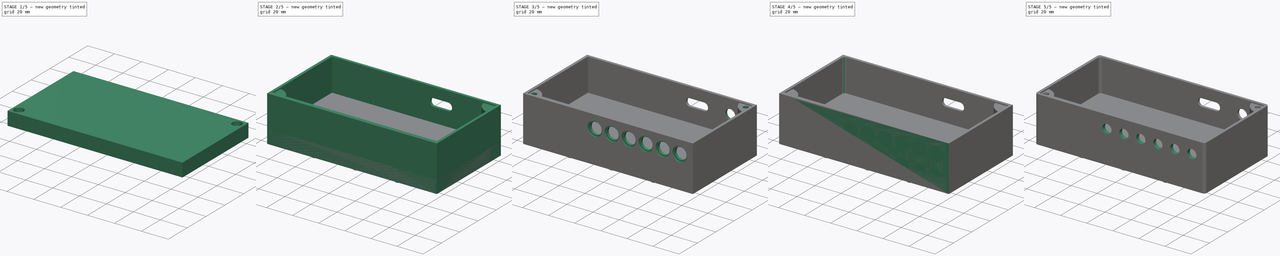
[diagram: build sequence overview — one tinted view per stage of 5, left to right]
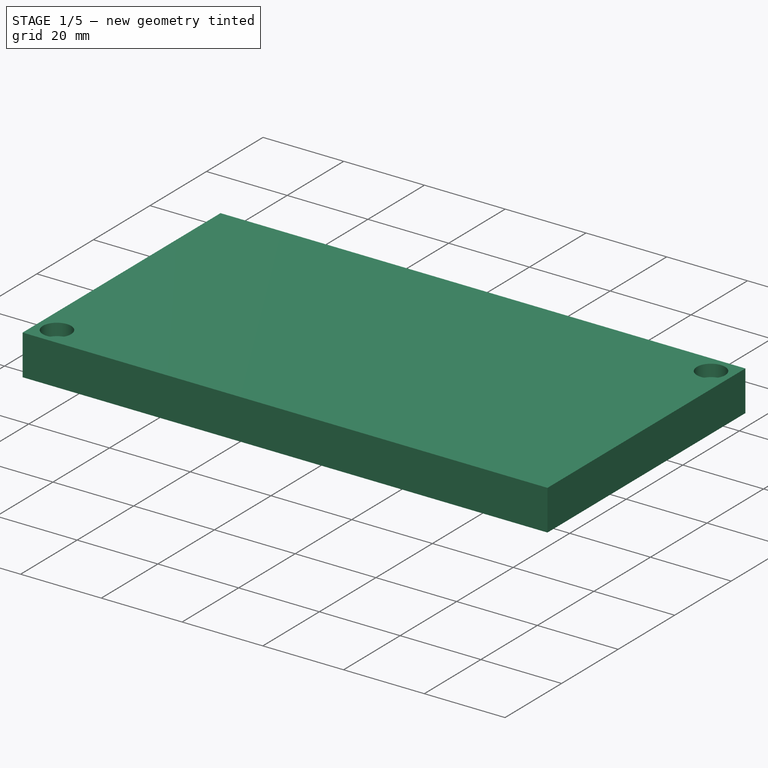
[diagram: stage 1 of 5 — iso view after this stage's code; geometry added in this stage tinted green]
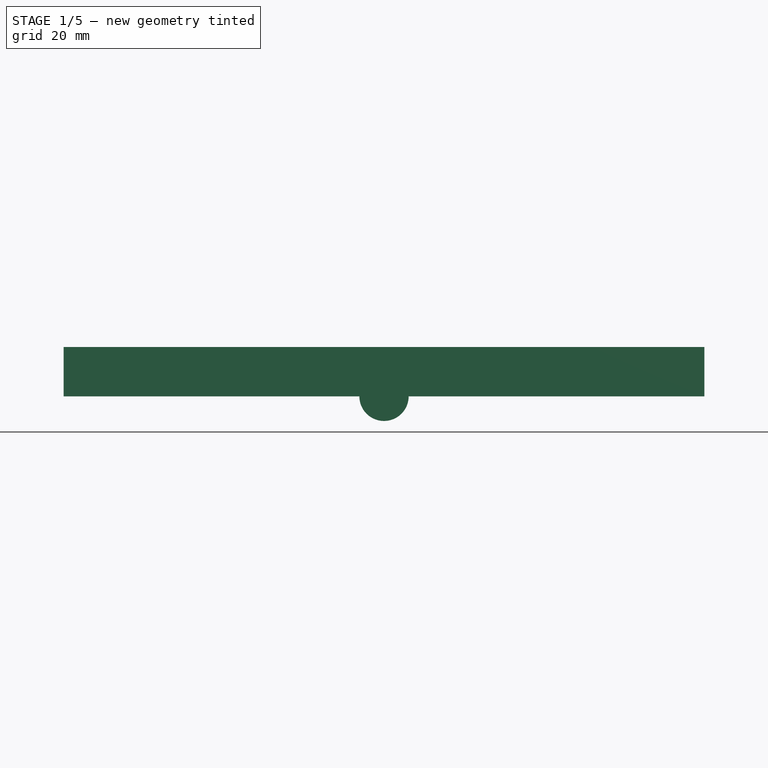
[diagram: stage 1 of 5 — front view after this stage's code; geometry added in this stage tinted green]
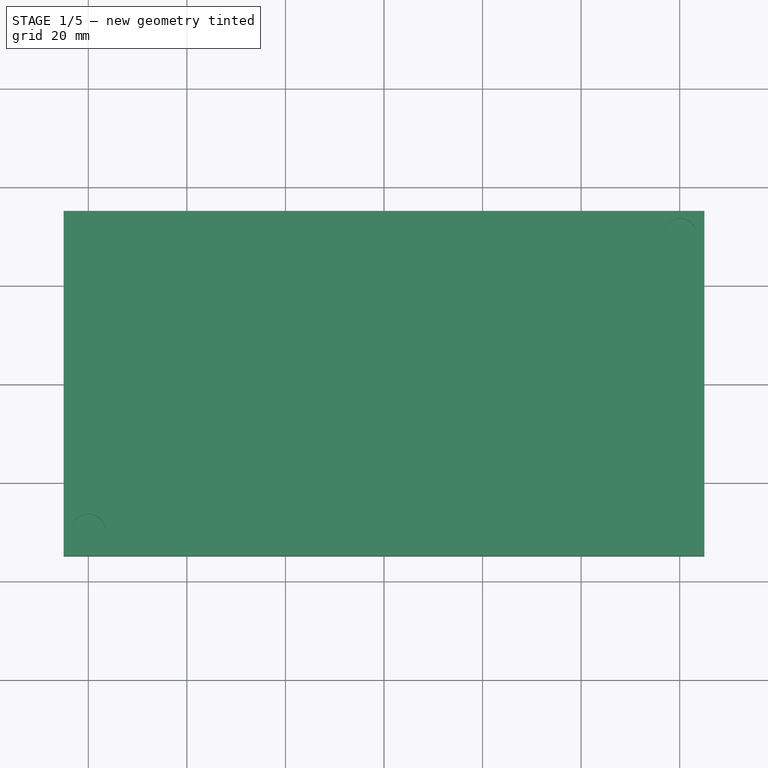
[diagram: stage 1 of 5 — top view after this stage's code; geometry added in this stage tinted green]
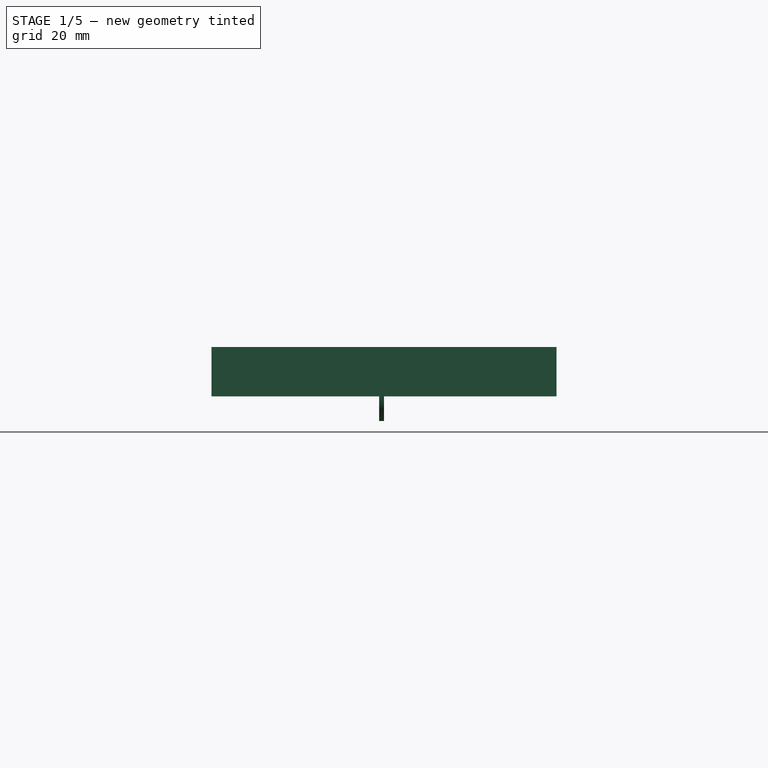
[diagram: stage 1 of 5 — right view after this stage's code; geometry added in this stage tinted green]
FCSTD DOCUMENT  (FreeCAD 0.21R33771 (Git))
Label: button_controller_case_updated
License: All rights reserved
LicenseURL: https://en.wikipedia.org/wiki/All_rights_reserved
objects: Sketcher::SketchObject×32, PartDesign::Pocket×19, PartDesign::Pad×13, PartDesign::Body×4, PartDesign::Fillet×3
note: 106 computed .brp shape members not serialized (recipe doc carries the construction recipe); baked Part::Feature solids carry a one-line shape summary decoded from their .brp

FEATURE [PartDesign::Body] Body001  label="body_jack_3.5_connectors"
  Group = -> [Sketch010,Pad004,Sketch011,Pocket006,Sketch012,Pocket007,Sketch013,Pocket008,Sketch014,Pad005,Sketch015,Pocket009,Sketch016,Pocket010,Sketch017,Pocket011,Sketch018,Sketch019,Pad006,Pad007,Sketch021,Pocket013,Sketch022,Pocket014,Sketch023,Pocket015,Fillet001]
  Origin = -> Origin001
  Placement = pos=(0,0,-81) rot=(0,0,1;0rad)
  Tip = -> Fillet001
FEATURE [Sketcher::SketchObject] Sketch024
  FullyConstrained = true
  MapMode = 5
  Support = -> [XY_Plane002]
  sketch-geometry (4):
    g0: LineSegment StartX=-65 StartY=35 StartZ=0 EndX=65 EndY=35 EndZ=0
    g1: LineSegment StartX=65 StartY=35 StartZ=0 EndX=65 EndY=-35 EndZ=0
    g2: LineSegment StartX=65 StartY=-35 StartZ=0 EndX=-65 EndY=-35 EndZ=0
    g3: LineSegment StartX=-65 StartY=-35 StartZ=0 EndX=-65 EndY=35 EndZ=0
  constraints (10):
    c: Coincident(g0,g1)
    c: Coincident(g1,g2)
    c: Coincident(g2,g3)
    c: Coincident(g3,g0)
    c: Horizontal(g2)
    c: Vertical(g3)
    c: Symmetric(g0,g0,g-2)
    c: Symmetric(g0,g1,g-1)
    c: DistanceX(g0,g0) = 130
    c: Distance(g1) = 70
FEATURE [PartDesign::Pad] Pad008
  Direction = (0,0,1)
  Length = 10
  Length2 = 10
  Profile = -> Sketch024
  ReferenceAxis = -> Sketch024 [N_Axis]
  Type = 0
FEATURE [Sketcher::SketchObject] Sketch025
  ExternalGeometry = -> [Pad008]
  FullyConstrained = true
  MapMode = 5
  Placement = pos=(0,0,0) rot=(1,0,0;3.14159rad)
  Support = -> [Pad008]
  sketch-geometry (4):
    g0: LineSegment StartX=-63 StartY=32 StartZ=0 EndX=63 EndY=32 EndZ=0
    g1: LineSegment StartX=63 StartY=32 StartZ=0 EndX=63 EndY=-33 EndZ=0
    g2: LineSegment StartX=63 StartY=-33 StartZ=0 EndX=-63 EndY=-33 EndZ=0
    g3: LineSegment StartX=-63 StartY=-33 StartZ=0 EndX=-63 EndY=32 EndZ=0
  constraints (11):
    c: Coincident(g0,g1)
    c: Coincident(g1,g2)
    c: Coincident(g2,g3)
    c: Coincident(g3,g0)
    c: Horizontal(g2)
    c: Vertical(g1)
    c: Vertical(g3)
    c: Symmetric(g0,g0,g-2)
    c: DistanceY(g0,g-3) = 3
    c: DistanceX(g0,g-3) = 2
    c: DistanceY(g-3,g1) = 2
FEATURE [PartDesign::Pocket] Pocket016
  BaseFeature = -> Pad008
  Direction = (0,0,1)
  Length = 8
  Length2 = 5
  Profile = -> Sketch025
  ReferenceAxis = -> Sketch025 [N_Axis]
  Type = 0
FEATURE [Sketcher::SketchObject] Sketch026
  ExternalGeometry = -> [Pocket016]
  FullyConstrained = true
  MapMode = 5
  Placement = pos=(0,0,10) rot=(0,0,1;0rad)
  Support = -> [Pocket016]
  sketch-geometry (6):
    g0: ArcOfCircle CenterX=-65 CenterY=-35 CenterZ=0 NormalX=0 NormalY=0 NormalZ=1 AngleXU=0 Radius=12 StartAngle=3e-16 EndAngle=1.5708
    g1: ArcOfCircle CenterX=65 CenterY=35 CenterZ=0 NormalX=0 NormalY=0 NormalZ=1 AngleXU=0 Radius=12 StartAngle=3.14159 EndAngle=4.71239
    g2: LineSegment StartX=-65 StartY=-23 StartZ=0 EndX=-65 EndY=-35 EndZ=0
    g3: LineSegment StartX=-65 StartY=-35 StartZ=0 EndX=-53 EndY=-35 EndZ=0
    g4: LineSegment StartX=65 StartY=35 StartZ=0 EndX=53 EndY=35 EndZ=0
    g5: LineSegment StartX=65 StartY=35 StartZ=0 EndX=65 EndY=23 EndZ=0
  constraints (16):
    c: Coincident(g0,g-6)
    c: PointOnObject(g0,g-6)
    c: PointOnObject(g0,g-3)
    c: Coincident(g1,g-5)
    c: PointOnObject(g1,g-4)
    c: PointOnObject(g1,g-5)
    c: Coincident(g2,g0)
    c: Coincident(g2,g0)
    c: Coincident(g3,g0)
    c: Coincident(g3,g0)
    c: Coincident(g4,g1)
    c: Coincident(g4,g1)
    c: Coincident(g5,g1)
    c: Coincident(g5,g1)
    c: Equal(g1,g0)
    c: Diameter(g1) = 24
FEATURE [PartDesign::Pad] Pad009
  BaseFeature = -> Pocket016
  Direction = (0,0,1)
  Length = 10
  Length2 = 10
  Profile = -> Sketch026
  ReferenceAxis = -> Sketch026 [N_Axis]
  Reversed = true
  Type = 0
FEATURE [Sketcher::SketchObject] Sketch027
  ExternalGeometry = -> [Pad009]
  FullyConstrained = true
  MapMode = 5
  Placement = pos=(0,0,0) rot=(1,0,0;3.14159rad)
  Support = -> [Pad009]
  sketch-geometry (2):
    g0: Circle CenterX=-60 CenterY=30 CenterZ=0 NormalX=0 NormalY=0 NormalZ=1 AngleXU=0 Radius=1.75
    g1: Circle CenterX=60 CenterY=-30 CenterZ=0 NormalX=0 NormalY=0 NormalZ=1 AngleXU=0 Radius=1.75
  constraints (6):
    c: Equal(g1,g0)
    c: Diameter(g1) = 3.5
    c: DistanceX(g1,g-3) = 5
    c: DistanceY(g-3,g1) = 5
    c: DistanceX(g-4,g0) = 5
    c: DistanceY(g0,g-4) = 5
FEATURE [PartDesign::Pocket] Pocket017
  BaseFeature = -> Pad009
  Direction = (0,0,1)
  Length = 10
  Length2 = 5
  Profile = -> Sketch027
  ReferenceAxis = -> Sketch027 [N_Axis]
  Type = 0
FEATURE [Sketcher::SketchObject] Sketch028
  ExternalGeometry = -> [Pocket017]
  FullyConstrained = true
  MapMode = 5
  Placement = pos=(0,0,10) rot=(0,0,1;0rad)
  Support = -> [Pocket017]
  sketch-geometry (2):
    g0: Circle CenterX=-60 CenterY=-30 CenterZ=0 NormalX=0 NormalY=0 NormalZ=1 AngleXU=0 Radius=3.5
    g1: Circle CenterX=60 CenterY=30 CenterZ=0 NormalX=0 NormalY=0 NormalZ=1 AngleXU=0 Radius=3.5
  constraints (4):
    c: Coincident(g0,g-4)
    c: Coincident(g1,g-3)
    c: Equal(g0,g1)
    c: Diameter(g0) = 7
FEATURE [PartDesign::Pocket] Pocket018
  BaseFeature = -> Pocket017
  Direction = (0,0,-1)
  Length = 3
  Length2 = 5
  Profile = -> Sketch028
  ReferenceAxis = -> Sketch028 [N_Axis]
  Type = 0
FEATURE [Sketcher::SketchObject] Sketch029
  ExternalGeometry = -> [Pocket018]
  FullyConstrained = true
  MapMode = 5
  Placement = pos=(0,0,7) rot=(0,0,1;0rad)
  Support = -> [Pocket018]
  sketch-geometry (2):
    g0: Circle CenterX=-60 CenterY=-30 CenterZ=0 NormalX=0 NormalY=0 NormalZ=1 AngleXU=0 Radius=1.75
    g1: Circle CenterX=60 CenterY=30 CenterZ=0 NormalX=0 NormalY=0 NormalZ=1 AngleXU=0 Radius=1.75
  constraints (4):
    c: Coincident(g0,g-4)
    c: Coincident(g1,g-3)
    c: Equal(g0,g1)
    c: Diameter(g0) = 3.5
FEATURE [PartDesign::Pad] Pad010
  BaseFeature = -> Pocket018
  Direction = (0,0,1)
  Length = 0.4
  Length2 = 10
  Profile = -> Sketch029
  ReferenceAxis = -> Sketch029 [N_Axis]
  Reversed = true
  Type = 0
FEATURE [PartDesign::Body] Body002  label="cap"
  Group = -> [Sketch024,Pad008,Sketch025,Pocket016,Sketch026,Pad009,Sketch027,Pocket017,Sketch028,Pocket018,Sketch029,Pad010,Sketch030,Pad011,Fillet002]
  Origin = -> Origin002
  Placement = pos=(0,0,84) rot=(0,0,1;0rad)
  Tip = -> Fillet002
FEATURE [Sketcher::SketchObject] Sketch031
  FullyConstrained = true
  MapMode = 5
  Placement = pos=(0,0,0) rot=(1,0,0;1.5708rad)
  Support = -> [XZ_Plane003]
  sketch-geometry (1):
    g0: Circle CenterX=0 CenterY=0 CenterZ=0 NormalX=0 NormalY=0 NormalZ=1 AngleXU=0 Radius=5
  constraints (2):
    c: Coincident(g0,g-1)
    c: Diameter(g0) = 10
FEATURE [PartDesign::Pad] Pad012
  Direction = (0,-1,2e-16)
  Length = 1
  Length2 = 10
  Placement = pos=(0,0,0) rot=(1,0,0;1.5708rad)
  Profile = -> Sketch031
  ReferenceAxis = -> Sketch031 [N_Axis]
  Type = 0
FEATURE [PartDesign::Body] Body003  label="color_indicator_for_jack_3.5_case"
  Group = -> [Sketch031,Pad012]
  Origin = -> Origin003
  Placement = pos=(2,-69,-72) rot=(0,0,1;0rad)
  Tip = -> Pad012
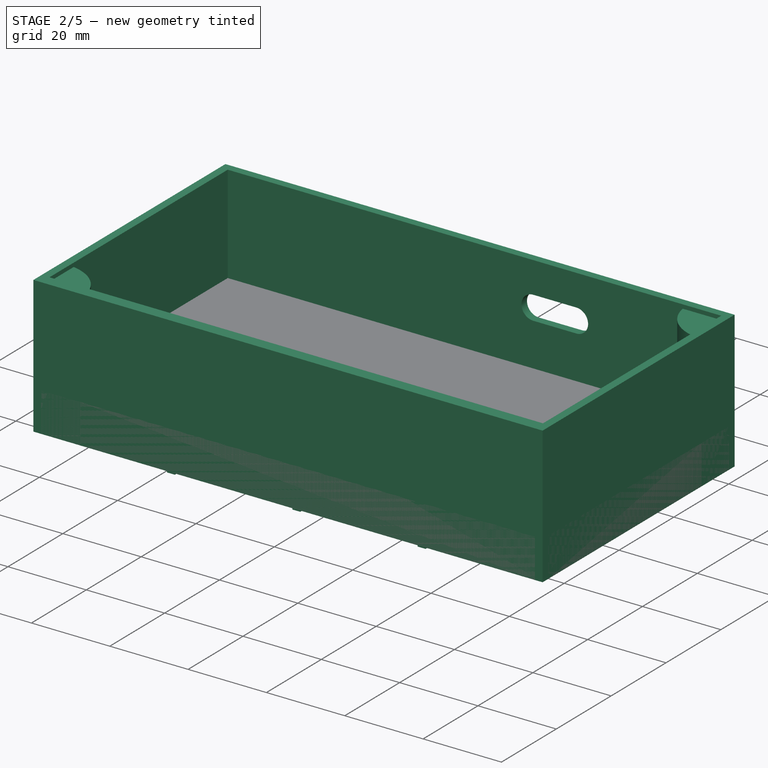
[diagram: stage 2 of 5 — iso view after this stage's code; geometry added in this stage tinted green]
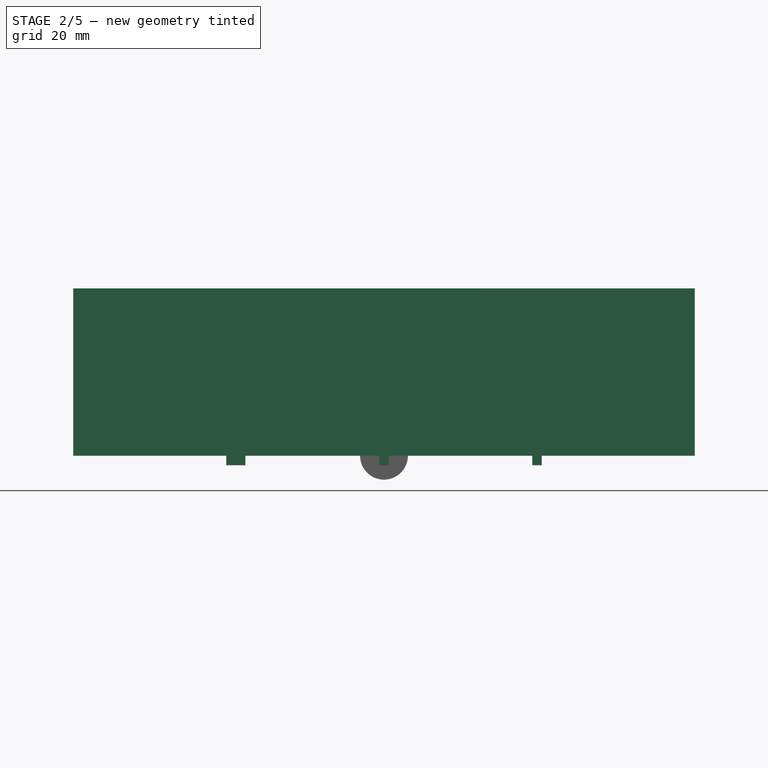
[diagram: stage 2 of 5 — front view after this stage's code; geometry added in this stage tinted green]
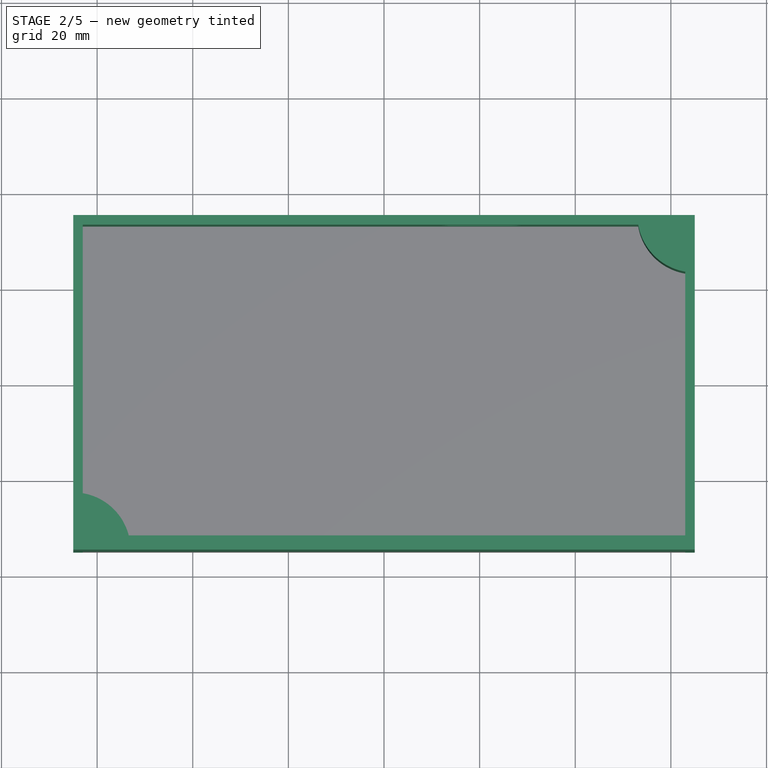
[diagram: stage 2 of 5 — top view after this stage's code; geometry added in this stage tinted green]
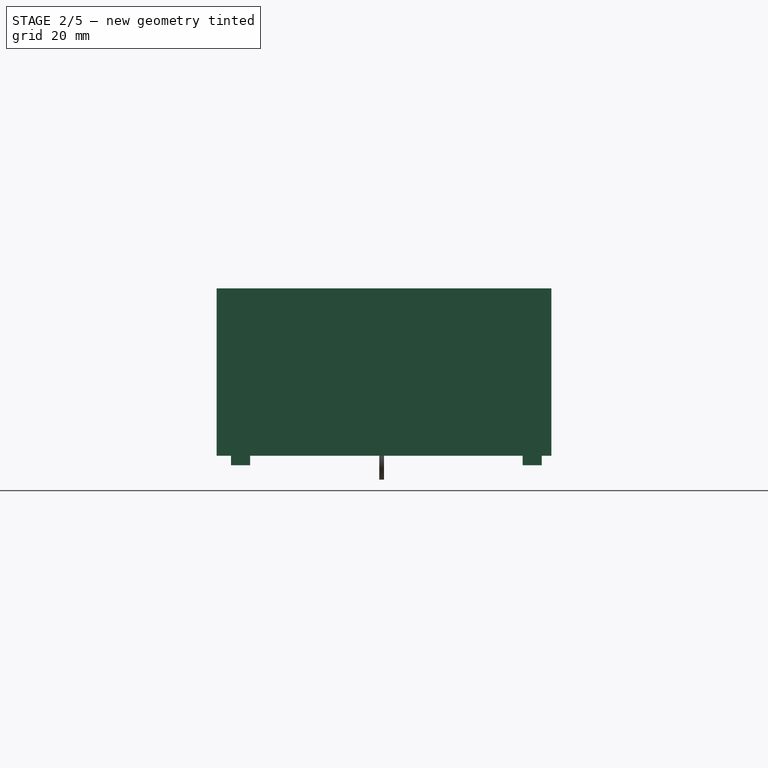
[diagram: stage 2 of 5 — right view after this stage's code; geometry added in this stage tinted green]
FEATURE [Sketcher::SketchObject] Sketch010
  FullyConstrained = true
  MapMode = 5
  Support = -> [XY_Plane001]
  sketch-geometry (4):
    g0: LineSegment StartX=-65 StartY=35 StartZ=0 EndX=65 EndY=35 EndZ=0
    g1: LineSegment StartX=65 StartY=35 StartZ=0 EndX=65 EndY=-35 EndZ=0
    g2: LineSegment StartX=65 StartY=-35 StartZ=0 EndX=-65 EndY=-35 EndZ=0
    g3: LineSegment StartX=-65 StartY=-35 StartZ=0 EndX=-65 EndY=35 EndZ=0
  constraints (10):
    c: Coincident(g0,g1)
    c: Coincident(g1,g2)
    c: Coincident(g2,g3)
    c: Coincident(g3,g0)
    c: Horizontal(g2)
    c: Vertical(g3)
    c: Symmetric(g0,g0,g-2)
    c: Symmetric(g0,g1,g-1)
    c: Distance(g0) = 130
    c: Distance(g1) = 70
FEATURE [PartDesign::Pad] Pad004
  Direction = (0,0,1)
  Length = 35
  Length2 = 10
  Profile = -> Sketch010
  ReferenceAxis = -> Sketch010 [N_Axis]
  Type = 0
FEATURE [Sketcher::SketchObject] Sketch011
  ExternalGeometry = -> [Pad004]
  FullyConstrained = true
  MapMode = 5
  Placement = pos=(0,0,35) rot=(0,0,1;0rad)
  Support = -> [Pad004]
  sketch-geometry (4):
    g0: LineSegment StartX=-63 StartY=33 StartZ=0 EndX=63 EndY=33 EndZ=0
    g1: LineSegment StartX=63 StartY=33 StartZ=0 EndX=63 EndY=-32 EndZ=0
    g2: LineSegment StartX=63 StartY=-32 StartZ=0 EndX=-63 EndY=-32 EndZ=0
    g3: LineSegment StartX=-63 StartY=-32 StartZ=0 EndX=-63 EndY=33 EndZ=0
  constraints (11):
    c: Coincident(g0,g1)
    c: Coincident(g1,g2)
    c: Coincident(g2,g3)
    c: Coincident(g3,g0)
    c: Horizontal(g2)
    c: Vertical(g1)
    c: Vertical(g3)
    c: Symmetric(g0,g0,g-2)
    c: DistanceY(g0,g-3) = 2
    c: DistanceY(g-3,g1) = 3
    c: DistanceX(g0,g-3) = 2
FEATURE [PartDesign::Pocket] Pocket006
  BaseFeature = -> Pad004
  Direction = (0,0,-1)
  Length = 33
  Length2 = 5
  Profile = -> Sketch011
  ReferenceAxis = -> Sketch011 [N_Axis]
  Type = 0
FEATURE [Sketcher::SketchObject] Sketch012
  ExternalGeometry = -> [Pocket006]
  FullyConstrained = true
  MapMode = 5
  Placement = pos=(0,0,2) rot=(0,0,1;0rad)
  Support = -> [Pocket006]
  sketch-geometry (4):
    g0: Circle CenterX=-55 CenterY=27 CenterZ=0 NormalX=0 NormalY=0 NormalZ=1 AngleXU=0 Radius=1.75
    g1: Circle CenterX=-55 CenterY=-17 CenterZ=0 NormalX=0 NormalY=0 NormalZ=1 AngleXU=0 Radius=1.75
    g2: Circle CenterX=39 CenterY=27 CenterZ=0 NormalX=0 NormalY=0 NormalZ=1 AngleXU=0 Radius=1.75
    g3: Circle CenterX=39 CenterY=-17 CenterZ=0 NormalX=0 NormalY=0 NormalZ=1 AngleXU=0 Radius=1.75
  constraints (12):
    c: Equal(g3,g2)
    c: Equal(g3,g0)
    c: Equal(g3,g1)
    c: Diameter(g3) = 3.5
    c: DistanceX(g0,g2) = 94
    c: DistanceX(g1,g3) = 94
    c: DistanceY(g1,g0) = 44
    c: DistanceY(g3,g2) = 44
    c: DistanceX(g-3,g0) = 10
    c: DistanceY(g0,g-3) = 8
    c: DistanceX(g0,g1) = 0
    c: DistanceY(g2,g0) = 0
FEATURE [PartDesign::Pocket] Pocket007
  BaseFeature = -> Pocket006
  Direction = (0,0,-1)
  Length = 2
  Length2 = 5
  Profile = -> Sketch012
  ReferenceAxis = -> Sketch012 [N_Axis]
  Type = 0
FEATURE [Sketcher::SketchObject] Sketch013
  ExternalGeometry = -> [Pocket007]
  FullyConstrained = true
  MapMode = 5
  Placement = pos=(0,35,0) rot=(0,0.707107,0.707107;3.14159rad)
  Support = -> [Pocket007]
  sketch-geometry (4):
    g0: ArcOfCircle CenterX=-26 CenterY=24 CenterZ=0 NormalX=0 NormalY=0 NormalZ=1 AngleXU=0 Radius=3 StartAngle=1.5708 EndAngle=4.71239
    g1: ArcOfCircle CenterX=-15 CenterY=24 CenterZ=0 NormalX=0 NormalY=0 NormalZ=1 AngleXU=0 Radius=3 StartAngle=4.71239 EndAngle=7.85398
    g2: LineSegment StartX=-26 StartY=21 StartZ=0 EndX=-15 EndY=21 EndZ=0
    g3: LineSegment StartX=-15 StartY=27 StartZ=0 EndX=-26 EndY=27 EndZ=0
  constraints (10):
    c: Tangent(g0,g2) = -1.5708
    c: Tangent(g2,g1) = -1.5708
    c: Tangent(g1,g3) = -1.5708
    c: Tangent(g3,g0) = -1.5708
    c: Equal(g0,g1)
    c: Horizontal(g2)
    c: DistanceX(g0,g1) = 11
    c: DistanceY(g1,g1) = 6
    c: DistanceY(g-3,g0) = 24
    c: DistanceX(g1,g-3) = 80
FEATURE [PartDesign::Pocket] Pocket008
  BaseFeature = -> Pocket007
  Direction = (0,-1,2e-16)
  Length = 2
  Length2 = 5
  Profile = -> Sketch013
  ReferenceAxis = -> Sketch013 [N_Axis]
  Type = 0
FEATURE [Sketcher::SketchObject] Sketch014
  ExternalGeometry = -> [Pocket008]
  FullyConstrained = true
  MapMode = 5
  Placement = pos=(0,0,0) rot=(1,0,0;3.14159rad)
  Support = -> [Pocket008]
  sketch-geometry (6):
    g0: ArcOfCircle CenterX=-65 CenterY=35 CenterZ=0 NormalX=0 NormalY=0 NormalZ=1 AngleXU=0 Radius=12 StartAngle=4.71239 EndAngle=6.28319
    g1: ArcOfCircle CenterX=65 CenterY=-35 CenterZ=0 NormalX=0 NormalY=0 NormalZ=1 AngleXU=0 Radius=12 StartAngle=1.5708 EndAngle=3.14159
    g2: LineSegment StartX=-53 StartY=35 StartZ=0 EndX=-65 EndY=35 EndZ=0
    g3: LineSegment StartX=-65 StartY=35 StartZ=0 EndX=-65 EndY=23 EndZ=0
    g4: LineSegment StartX=65 StartY=-23 StartZ=0 EndX=65 EndY=-35 EndZ=0
    g5: LineSegment StartX=65 StartY=-35 StartZ=0 EndX=53 EndY=-35 EndZ=0
  constraints (16):
    c: Coincident(g0,g-6)
    c: PointOnObject(g0,g-5)
    c: PointOnObject(g0,g-6)
    c: Coincident(g1,g-4)
    c: PointOnObject(g1,g-3)
    c: PointOnObject(g1,g-4)
    c: Coincident(g2,g0)
    c: Coincident(g2,g0)
    c: Coincident(g3,g0)
    c: Coincident(g3,g0)
    c: Coincident(g4,g1)
    c: Coincident(g4,g1)
    c: Coincident(g5,g1)
    c: Coincident(g5,g1)
    c: Equal(g1,g0)
    c: Diameter(g1) = 24
FEATURE [PartDesign::Pad] Pad005
  BaseFeature = -> Pocket008
  Direction = (0,0,-1)
  Length = 34
  Length2 = 10
  Profile = -> Sketch014
  ReferenceAxis = -> Sketch014 [N_Axis]
  Reversed = true
  Type = 0
FEATURE [Sketcher::SketchObject] Sketch030
  ExternalGeometry = -> [Pad010]
  FullyConstrained = true
  MapMode = 5
  Placement = pos=(0,0,8) rot=(1,0,0;3.14159rad)
  Support = -> [Pad010]
  sketch-geometry (24):
    g0: LineSegment StartX=-31 StartY=32 StartZ=0 EndX=-33 EndY=32 EndZ=0
    g1: LineSegment StartX=-33 StartY=32 StartZ=0 EndX=-33 EndY=28 EndZ=0
    g2: LineSegment StartX=-33 StartY=28 StartZ=0 EndX=-31 EndY=28 EndZ=0
    g3: LineSegment StartX=-31 StartY=28 StartZ=0 EndX=-31 EndY=32 EndZ=0
    g4: LineSegment StartX=-1 StartY=32 StartZ=0 EndX=1 EndY=32 EndZ=0
    g5: LineSegment StartX=1 StartY=32 StartZ=0 EndX=1 EndY=28 EndZ=0
    g6: LineSegment StartX=1 StartY=28 StartZ=0 EndX=-1 EndY=28 EndZ=0
    g7: LineSegment StartX=-1 StartY=28 StartZ=0 EndX=-1 EndY=32 EndZ=0
    g8: LineSegment StartX=31 StartY=32 StartZ=0 EndX=33 EndY=32 EndZ=0
    g9: LineSegment StartX=33 StartY=32 StartZ=0 EndX=33 EndY=28 EndZ=0
    g10: LineSegment StartX=33 StartY=28 StartZ=0 EndX=31 EndY=28 EndZ=0
    g11: LineSegment StartX=31 StartY=28 StartZ=0 EndX=31 EndY=32 EndZ=0
    g12: LineSegment StartX=-29 StartY=-33 StartZ=0 EndX=-31 EndY=-33 EndZ=0
    g13: LineSegment StartX=-31 StartY=-33 StartZ=0 EndX=-31 EndY=-29 EndZ=0
    g14: LineSegment StartX=-31 StartY=-29 StartZ=0 EndX=-29 EndY=-29 EndZ=0
    g15: LineSegment StartX=-29 StartY=-29 StartZ=0 EndX=-29 EndY=-33 EndZ=0
    g16: LineSegment StartX=31 StartY=-33 StartZ=0 EndX=33 EndY=-33 EndZ=0
    g17: LineSegment StartX=33 StartY=-33 StartZ=0 EndX=33 EndY=-29 EndZ=0
    g18: LineSegment StartX=33 StartY=-29 StartZ=0 EndX=31 EndY=-29 EndZ=0
    g19: LineSegment StartX=31 StartY=-29 StartZ=0 EndX=31 EndY=-33 EndZ=0
    g20: LineSegment StartX=-1 StartY=-33 StartZ=0 EndX=1 EndY=-33 EndZ=0
    g21: LineSegment StartX=1 StartY=-33 StartZ=0 EndX=1 EndY=-29 EndZ=0
    g22: LineSegment StartX=1 StartY=-29 StartZ=0 EndX=-1 EndY=-29 EndZ=0
    g23: LineSegment StartX=-1 StartY=-29 StartZ=0 EndX=-1 EndY=-33 EndZ=0
  constraints (70):
    c: Coincident(g0,g1)
    c: Coincident(g1,g2)
    c: Coincident(g2,g3)
    c: Coincident(g3,g0)
    c: Horizontal(g0)
    c: Horizontal(g2)
    c: Vertical(g1)
    c: Vertical(g3)
    c: PointOnObject(g0,g-3)
    c: Coincident(g4,g5)
    c: Coincident(g5,g6)
    c: Coincident(g6,g7)
    c: Coincident(g7,g4)
    c: Horizontal(g4)
    c: Vertical(g5)
    c: Vertical(g7)
    c: PointOnObject(g4,g-3)
    c: Coincident(g8,g9)
    c: Coincident(g9,g10)
    c: Coincident(g10,g11)
    c: Coincident(g11,g8)
    c: Horizontal(g8)
    c: Horizontal(g10)
    c: Vertical(g9)
    c: Vertical(g11)
    c: PointOnObject(g8,g-3)
    c: Coincident(g12,g13)
    c: Coincident(g13,g14)
    c: Coincident(g14,g15)
    c: Coincident(g15,g12)
    c: Horizontal(g12)
    c: Horizontal(g14)
    c: Vertical(g13)
    c: Vertical(g15)
    c: PointOnObject(g12,g-4)
    c: Coincident(g16,g17)
    c: Coincident(g17,g18)
    c: Coincident(g18,g19)
    c: Coincident(g19,g16)
    c: Horizontal(g16)
    c: Horizontal(g18)
    c: Vertical(g17)
    c: Vertical(g19)
    c: PointOnObject(g16,g-4)
    c: Coincident(g20,g21)
    c: Coincident(g21,g22)
    c: Coincident(g22,g23)
    c: Coincident(g23,g20)
    c: Horizontal(g20)
    c: Vertical(g21)
    c: Vertical(g23)
    c: PointOnObject(g20,g-4)
    c: Equal(g10,g6)
    c: Equal(g6,g2)
    c: Equal(g2,g14)
    c: Equal(g14,g22)
    c: Equal(g22,g18)
    c: Equal(g1,g7)
    c: Equal(g7,g19)
    c: Equal(g19,g23)
    c: Equal(g23,g13)
    c: Symmetric(g5,g6,g-2)
    c: Symmetric(g21,g22,g-2)
    c: DistanceX(g18,g18) = 2
    c: Equal(g11,g5)
    c: DistanceX(g5,g10) = 30
    c: DistanceX(g13,g22) = 30
    c: DistanceX(g21,g18) = 30
    c: DistanceX(g2,g6) = 30
    c: Distance(g17) = 4
FEATURE [PartDesign::Pad] Pad011
  BaseFeature = -> Pad010
  Direction = (0,0,-1)
  Length = 10
  Length2 = 10
  Profile = -> Sketch030
  ReferenceAxis = -> Sketch030 [N_Axis]
  Type = 0
FEATURE [PartDesign::Fillet] Fillet002
  Base = -> Pad011 [Edge17,Edge4,Edge61,Edge67,Edge47,Edge140]
  BaseFeature = -> Pad011
  Radius = 2
  SupportTransform = false
  UseAllEdges = false
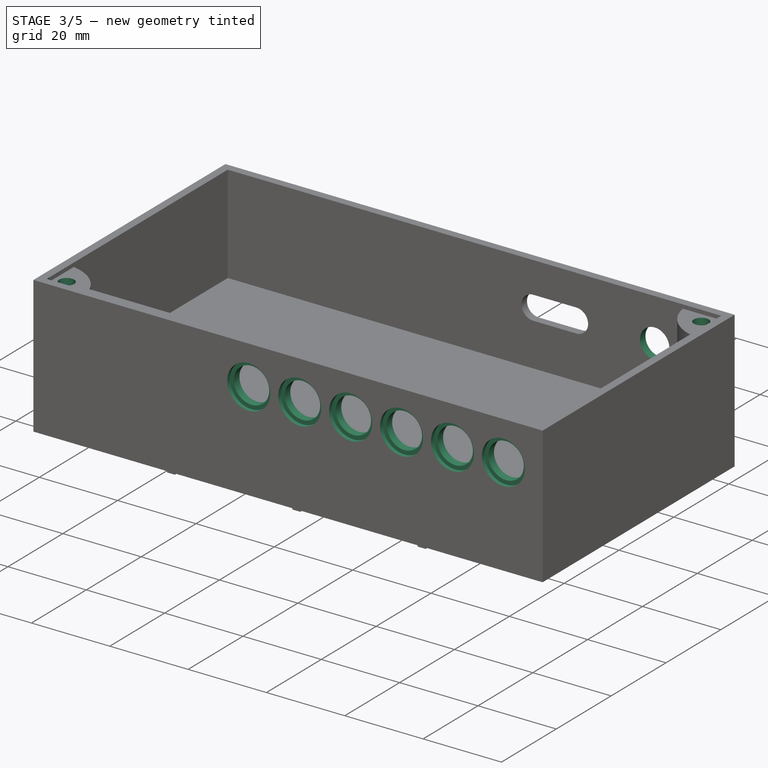
[diagram: stage 3 of 5 — iso view after this stage's code; geometry added in this stage tinted green]
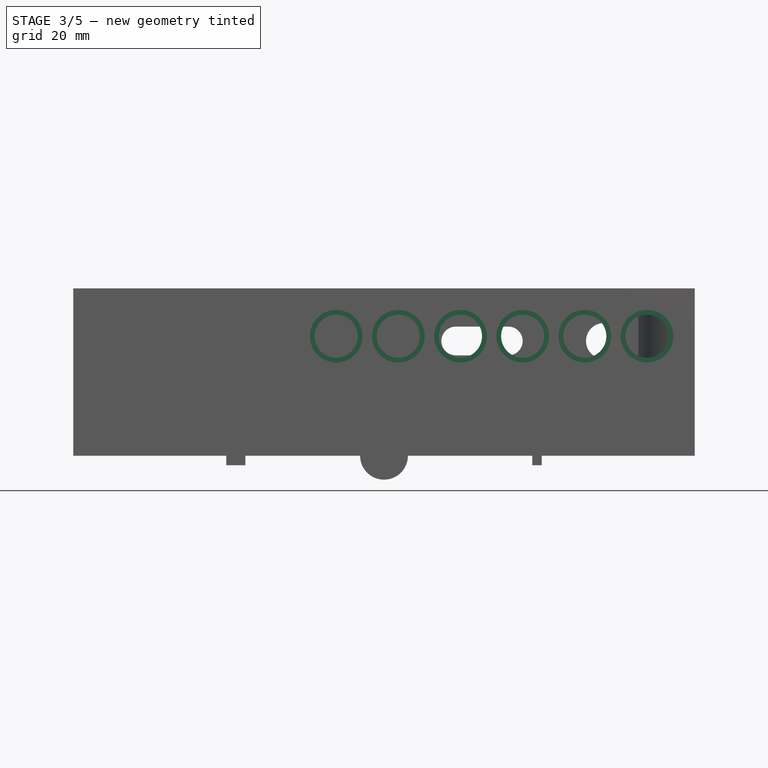
[diagram: stage 3 of 5 — front view after this stage's code; geometry added in this stage tinted green]
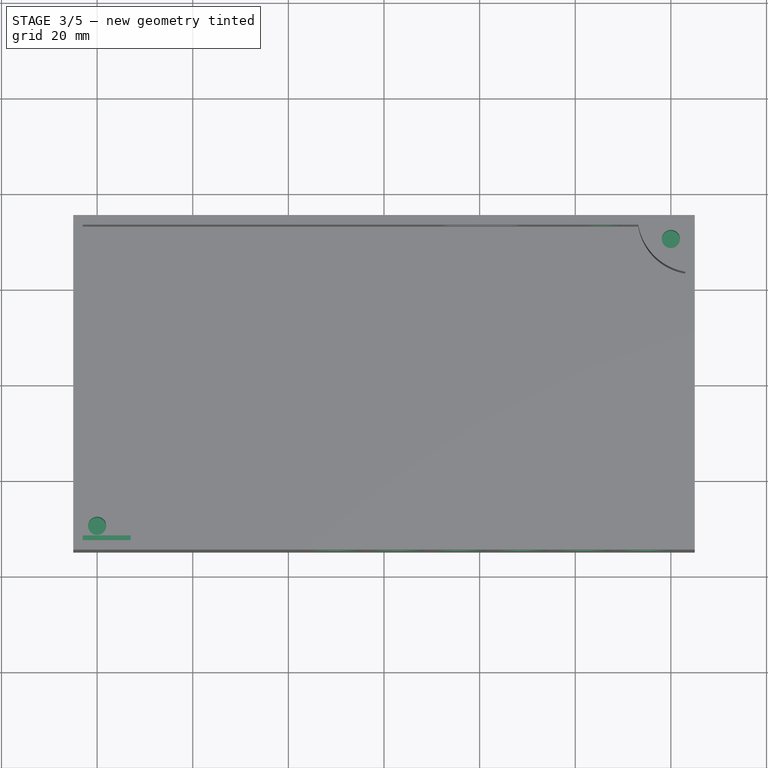
[diagram: stage 3 of 5 — top view after this stage's code; geometry added in this stage tinted green]
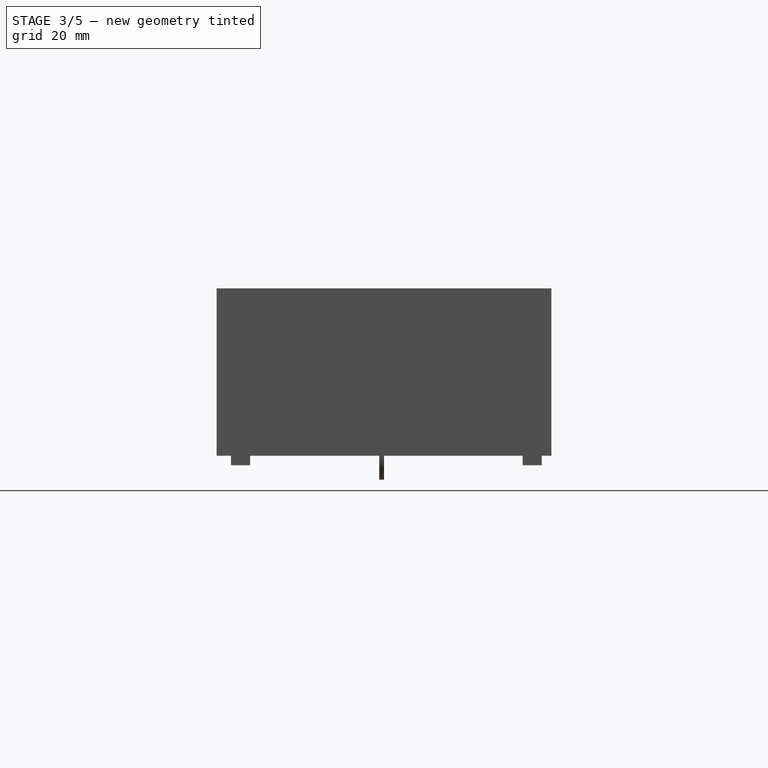
[diagram: stage 3 of 5 — right view after this stage's code; geometry added in this stage tinted green]
FEATURE [Sketcher::SketchObject] Sketch015
  ExternalGeometry = -> [Pad005]
  FullyConstrained = true
  MapMode = 5
  Placement = pos=(0,0,34) rot=(0,0,1;0rad)
  Support = -> [Pad005]
  sketch-geometry (2):
    g0: Circle CenterX=-60 CenterY=-30 CenterZ=0 NormalX=0 NormalY=0 NormalZ=1 AngleXU=0 Radius=1.9
    g1: Circle CenterX=60 CenterY=30 CenterZ=0 NormalX=0 NormalY=0 NormalZ=1 AngleXU=0 Radius=1.9
  constraints (6):
    c: Equal(g1,g0)
    c: Diameter(g1) = 3.8
    c: DistanceX(g1,g-3) = 5
    c: DistanceY(g1,g-3) = 5
    c: DistanceX(g-4,g0) = 5
    c: DistanceY(g-4,g0) = 5
FEATURE [PartDesign::Pocket] Pocket009
  BaseFeature = -> Pad005
  Direction = (0,0,-1)
  Length = 10
  Length2 = 5
  Profile = -> Sketch015
  ReferenceAxis = -> Sketch015 [N_Axis]
  Type = 0
FEATURE [Sketcher::SketchObject] Sketch016
  ExternalGeometry = -> [Pocket009]
  FullyConstrained = true
  MapMode = 5
  Placement = pos=(0,0,35) rot=(0,0,1;0rad)
  Support = -> [Pocket009]
  sketch-geometry (4):
    g0: LineSegment StartX=-63 StartY=-32 StartZ=0 EndX=-53 EndY=-32 EndZ=0
    g1: LineSegment StartX=-53 StartY=-32 StartZ=0 EndX=-53 EndY=-33 EndZ=0
    g2: LineSegment StartX=-53 StartY=-33 StartZ=0 EndX=-63 EndY=-33 EndZ=0
    g3: LineSegment StartX=-63 StartY=-33 StartZ=0 EndX=-63 EndY=-32 EndZ=0
  constraints (11):
    c: Coincident(g0,g1)
    c: Coincident(g1,g2)
    c: Coincident(g2,g3)
    c: Coincident(g3,g0)
    c: Horizontal(g0)
    c: Horizontal(g2)
    c: Vertical(g1)
    c: Vertical(g3)
    c: Coincident(g0,g-3)
    c: DistanceX(g2,g2) = 10
    c: DistanceY(g1,g1) = 1
FEATURE [PartDesign::Pocket] Pocket010
  BaseFeature = -> Pocket009
  Direction = (0,0,-1)
  Length = 1
  Length2 = 5
  Profile = -> Sketch016
  ReferenceAxis = -> Sketch016 [N_Axis]
  Type = 0
FEATURE [Sketcher::SketchObject] Sketch017
  ExternalGeometry = -> [Pocket010]
  FullyConstrained = true
  MapMode = 5
  Placement = pos=(0,35,0) rot=(0,0.707107,0.707107;3.14159rad)
  Support = -> [Pocket010]
  sketch-geometry (1):
    g0: Circle CenterX=-46 CenterY=24 CenterZ=0 NormalX=0 NormalY=0 NormalZ=1 AngleXU=0 Radius=3.75
  constraints (3):
    c: Diameter(g0) = 7.5
    c: DistanceX(g-3,g0) = 7
    c: DistanceY(g-4,g0) = 0
FEATURE [PartDesign::Pocket] Pocket011
  BaseFeature = -> Pocket010
  Direction = (0,-1,2e-16)
  Length = 2
  Length2 = 5
  Profile = -> Sketch017
  ReferenceAxis = -> Sketch017 [N_Axis]
  Type = 0
FEATURE [Sketcher::SketchObject] Sketch018
  AttachmentOffset = pos=(0,0,-87) rot=(0,0,1;0rad)
  ExternalGeometry = -> [Pocket011]
  FullyConstrained = true
  MapMode = 5
  Placement = pos=(-22,0,0) rot=(0.57735,0.57735,0.57735;2.0944rad)
  Support = -> [Pocket011]
  sketch-geometry (6):
    g0: LineSegment StartX=-35 StartY=0 StartZ=0 EndX=-35 EndY=8 EndZ=0
    g1: LineSegment StartX=35 StartY=0 StartZ=0 EndX=35 EndY=8 EndZ=0
    g2: LineSegment StartX=35 StartY=0 StartZ=0 EndX=-35 EndY=0 EndZ=0
    g3: LineSegment StartX=-30 StartY=4 StartZ=0 EndX=30 EndY=4 EndZ=0
    g4: ArcOfCircle CenterX=30.1008 CenterY=8.99898 CenterZ=0 NormalX=0 NormalY=0 NormalZ=1 AngleXU=0 Radius=5 StartAngle=4.69222 EndAngle=6.08203
    g5: ArcOfCircle CenterX=-30.1008 CenterY=8.99898 CenterZ=0 NormalX=0 NormalY=0 NormalZ=1 AngleXU=0 Radius=5 StartAngle=3.34274 EndAngle=4.73255
  constraints (17):
    c: Coincident(g0,g-3)
    c: PointOnObject(g0,g-3)
    c: Coincident(g1,g-4)
    c: PointOnObject(g1,g-4)
    c: Coincident(g2,g1)
    c: Coincident(g2,g0)
    c: Coincident(g4,g1)
    c: Coincident(g4,g3)
    c: Coincident(g5,g3)
    c: Coincident(g5,g0)
    c: DistanceY(g0,g3) = 4
    c: DistanceY(g0,g0) = 8
    c: Symmetric(g3,g3,g-2)
    c: Equal(g5,g4)
    c: DistanceX(g3,g3) = 60
    c: Diameter(g4) = 10
    c: Equal(g1,g0)
FEATURE [PartDesign::Pad] Pad006
  BaseFeature = -> Pocket011
  Direction = (1,0,0)
  Length = 2
  Length2 = 10
  Midplane = true
  Profile = -> Sketch018
  ReferenceAxis = -> Sketch018 [N_Axis]
  Type = 0
FEATURE [Sketcher::SketchObject] Sketch019
  AttachmentOffset = pos=(0,0,-43) rot=(0,0,1;0rad)
  ExternalGeometry = -> [Pocket011]
  FullyConstrained = true
  MapMode = 5
  Placement = pos=(22,0,0) rot=(0.57735,0.57735,0.57735;2.0944rad)
  Support = -> [Pocket011]
  sketch-geometry (6):
    g0: LineSegment StartX=-35 StartY=0 StartZ=0 EndX=35 EndY=0 EndZ=0
    g1: LineSegment StartX=35 StartY=0 StartZ=0 EndX=35 EndY=8 EndZ=0
    g2: LineSegment StartX=-35 StartY=0 StartZ=0 EndX=-35 EndY=8 EndZ=0
    g3: LineSegment StartX=-30 StartY=4 StartZ=0 EndX=30 EndY=4 EndZ=0
    g4: ArcOfCircle CenterX=-30.1008 CenterY=8.99898 CenterZ=0 NormalX=0 NormalY=0 NormalZ=1 AngleXU=0 Radius=5 StartAngle=3.34274 EndAngle=4.73255
    g5: ArcOfCircle CenterX=30.1008 CenterY=8.99898 CenterZ=0 NormalX=0 NormalY=0 NormalZ=1 AngleXU=0 Radius=5 StartAngle=4.69222 EndAngle=6.08203
  constraints (17):
    c: Coincident(g0,g-5)
    c: Coincident(g0,g-4)
    c: Coincident(g1,g0)
    c: PointOnObject(g1,g-4)
    c: Coincident(g2,g0)
    c: PointOnObject(g2,g-5)
    c: Equal(g2,g1)
    c: DistanceY(g2,g2) = 8
    c: DistanceY(g0,g3) = 4
    c: Symmetric(g3,g3,g-2)
    c: DistanceX(g3,g3) = 60
    c: Coincident(g4,g3)
    c: Coincident(g4,g2)
    c: Coincident(g5,g1)
    c: Coincident(g5,g3)
    c: Equal(g5,g4)
    c: Diameter(g5) = 10
FEATURE [PartDesign::Pad] Pad007
  BaseFeature = -> Pad006
  Direction = (1,0,0)
  Length = 2
  Length2 = 10
  Midplane = true
  Profile = -> Sketch019
  ReferenceAxis = -> Sketch019 [N_Axis]
  Type = 0
FEATURE [PartDesign::Body] Body  label="body_rca_connectors"
  Group = -> [Sketch,Pad,Sketch001,Pocket,Sketch002,Pocket001,Sketch003,Pocket002,Sketch004,Pad001,Sketch005,Pocket003,Sketch006,Pocket004,Sketch007,Pocket005,Sketch008,Sketch009,Pad002,Pad003,Sketch020,Pocket012,Fillet]
  Origin = -> Origin
  Tip = -> Fillet
FEATURE [Sketcher::SketchObject] Sketch021
  ExternalGeometry = -> [Pad007]
  FullyConstrained = true
  MapMode = 5
  Placement = pos=(0,-35,0) rot=(1,0,0;1.5708rad)
  Support = -> [Pad007]
  sketch-geometry (6):
    g0: Circle CenterX=-10 CenterY=25 CenterZ=0 NormalX=0 NormalY=0 NormalZ=1 AngleXU=0 Radius=5.5
    g1: Circle CenterX=3 CenterY=25 CenterZ=0 NormalX=0 NormalY=0 NormalZ=1 AngleXU=0 Radius=5.5
    g2: Circle CenterX=16 CenterY=25 CenterZ=0 NormalX=0 NormalY=0 NormalZ=1 AngleXU=0 Radius=5.5
    g3: Circle CenterX=29 CenterY=25 CenterZ=0 NormalX=0 NormalY=0 NormalZ=1 AngleXU=0 Radius=5.5
    g4: Circle CenterX=42 CenterY=25 CenterZ=0 NormalX=0 NormalY=0 NormalZ=1 AngleXU=0 Radius=5.5
    g5: Circle CenterX=55 CenterY=25 CenterZ=0 NormalX=0 NormalY=0 NormalZ=1 AngleXU=0 Radius=5.5
  constraints (14):
    c: Equal(g0, g1-g5) x5
    c: Diameter(g0) = 11
    c: DistanceX(g0,g1) = 13
    c: DistanceX(g1,g2) = 13
    c: DistanceX(g2,g3) = 13
    c: DistanceX(g3,g4) = 13
    c: DistanceX(g4,g5) = 13
    c: DistanceY(g0,g1) = 0
    c: DistanceY(g2,g1) = 0
    c: DistanceY(g3,g2) = 0
    c: DistanceY(g4,g3) = 0
    c: DistanceY(g5,g4) = 0
    c: DistanceY(g5,g-3) = 10
    c: DistanceX(g5,g-3) = 10
FEATURE [PartDesign::Pocket] Pocket013
  BaseFeature = -> Pad007
  Direction = (0,1,-2e-16)
  Length = 1
  Length2 = 5
  Profile = -> Sketch021
  ReferenceAxis = -> Sketch021 [N_Axis]
  Type = 0
FEATURE [Sketcher::SketchObject] Sketch022
  ExternalGeometry = -> [Pocket013]
  FullyConstrained = true
  MapMode = 5
  Placement = pos=(0,-34,0) rot=(1,0,0;1.5708rad)
  Support = -> [Pocket013]
  sketch-geometry (6):
    g0: Circle CenterX=-10 CenterY=25 CenterZ=0 NormalX=0 NormalY=0 NormalZ=1 AngleXU=0 Radius=4.5
    g1: Circle CenterX=3 CenterY=25 CenterZ=0 NormalX=0 NormalY=0 NormalZ=1 AngleXU=0 Radius=4.5
    g2: Circle CenterX=16 CenterY=25 CenterZ=0 NormalX=0 NormalY=0 NormalZ=1 AngleXU=0 Radius=4.5
    g3: Circle CenterX=29 CenterY=25 CenterZ=0 NormalX=0 NormalY=0 NormalZ=1 AngleXU=0 Radius=4.5
    g4: Circle CenterX=42 CenterY=25 CenterZ=0 NormalX=0 NormalY=0 NormalZ=1 AngleXU=0 Radius=4.5
    g5: Circle CenterX=55 CenterY=25 CenterZ=0 NormalX=0 NormalY=0 NormalZ=1 AngleXU=0 Radius=4.5
  constraints (12):
    c: Coincident(g0,g-8)
    c: Coincident(g1,g-7)
    c: Coincident(g2,g-6)
    c: Coincident(g3,g-5)
    c: Coincident(g4,g-4)
    c: Coincident(g5,g-3)
    c: Equal(g5,g4)
    c: Equal(g5,g3)
    c: Equal(g5,g2)
    c: Equal(g5,g1)
    c: Equal(g5,g0)
    c: Diameter(g5) = 9
FEATURE [PartDesign::Pocket] Pocket014
  BaseFeature = -> Pocket013
  Direction = (0,1,-2e-16)
  Length = 2
  Length2 = 5
  Profile = -> Sketch022
  ReferenceAxis = -> Sketch022 [N_Axis]
  Type = 0
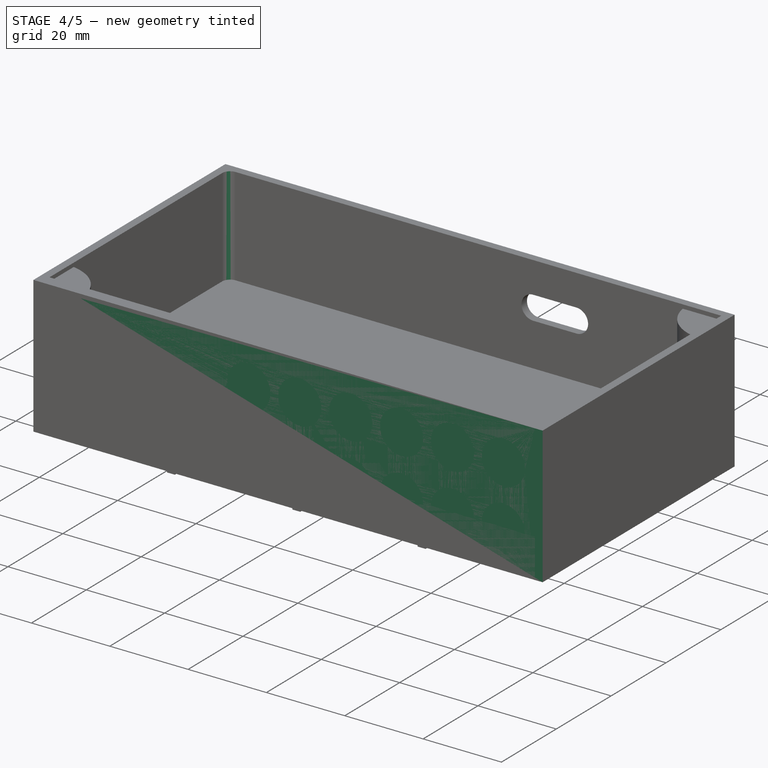
[diagram: stage 4 of 5 — iso view after this stage's code; geometry added in this stage tinted green]
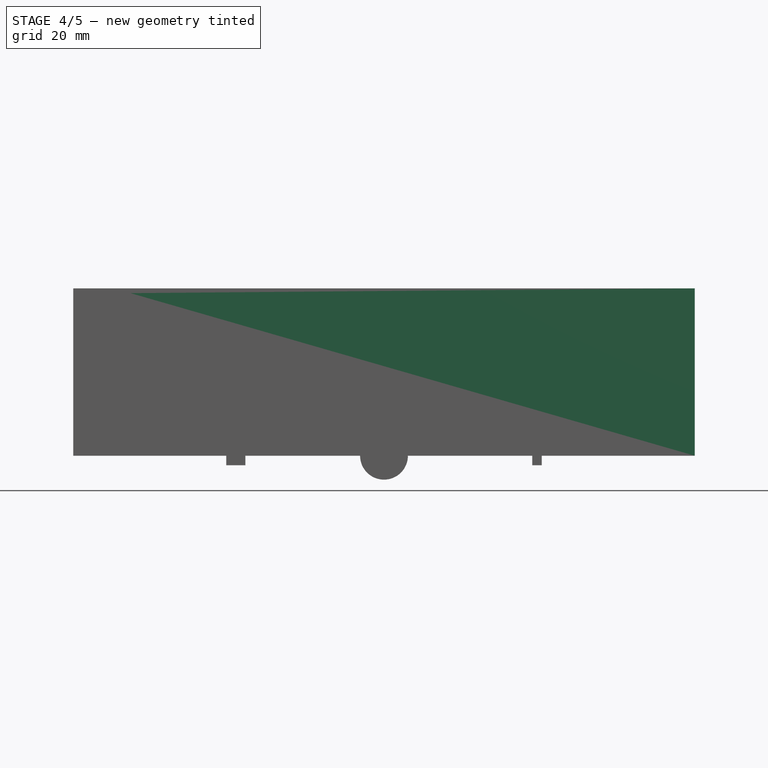
[diagram: stage 4 of 5 — front view after this stage's code; geometry added in this stage tinted green]
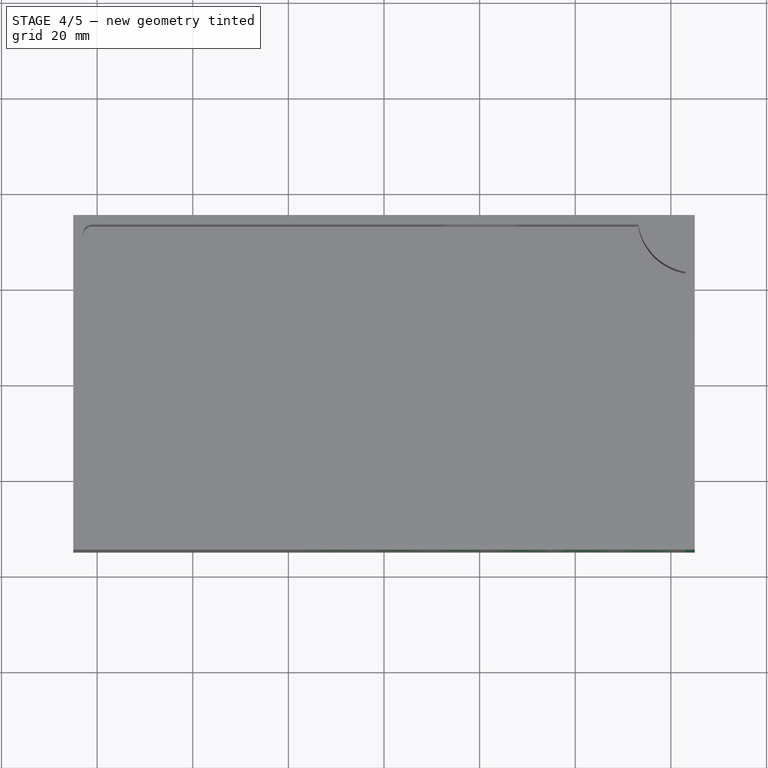
[diagram: stage 4 of 5 — top view after this stage's code; geometry added in this stage tinted green]
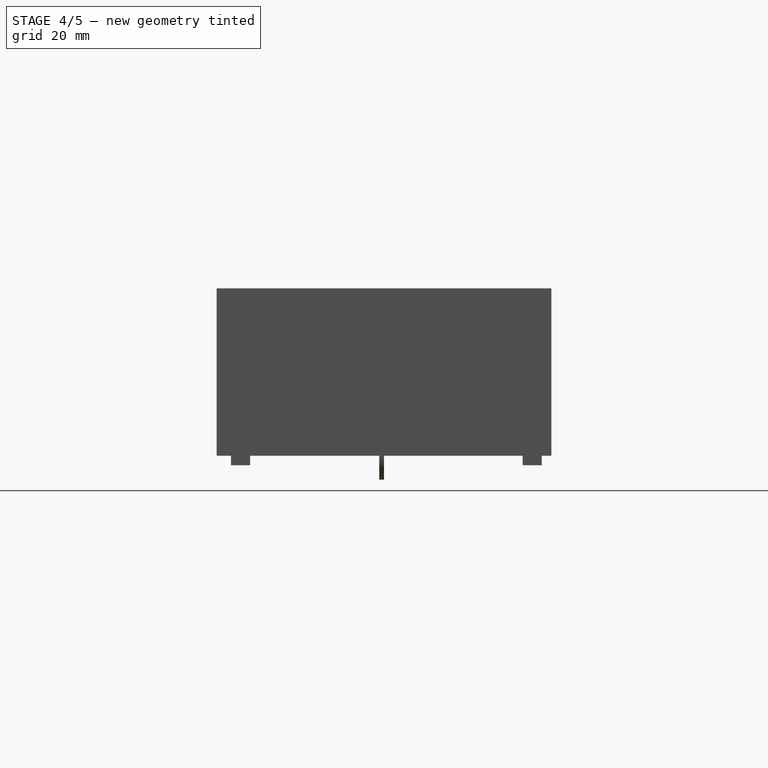
[diagram: stage 4 of 5 — right view after this stage's code; geometry added in this stage tinted green]
FEATURE [Sketcher::SketchObject] Sketch
  FullyConstrained = true
  MapMode = 5
  Support = -> [XY_Plane]
  sketch-geometry (4):
    g0: LineSegment StartX=-65 StartY=35 StartZ=0 EndX=65 EndY=35 EndZ=0
    g1: LineSegment StartX=65 StartY=35 StartZ=0 EndX=65 EndY=-35 EndZ=0
    g2: LineSegment StartX=65 StartY=-35 StartZ=0 EndX=-65 EndY=-35 EndZ=0
    g3: LineSegment StartX=-65 StartY=-35 StartZ=0 EndX=-65 EndY=35 EndZ=0
  constraints (10):
    c: Coincident(g0,g1)
    c: Coincident(g1,g2)
    c: Coincident(g2,g3)
    c: Coincident(g3,g0)
    c: Horizontal(g2)
    c: Vertical(g3)
    c: Symmetric(g0,g0,g-2)
    c: Symmetric(g0,g1,g-1)
    c: Distance(g0) = 130
    c: Distance(g1) = 70
FEATURE [PartDesign::Pad] Pad
  Direction = (0,0,1)
  Length = 35
  Length2 = 10
  Profile = -> Sketch
  ReferenceAxis = -> Sketch [N_Axis]
  Type = 0
FEATURE [Sketcher::SketchObject] Sketch001
  ExternalGeometry = -> [Pad]
  FullyConstrained = true
  MapMode = 5
  Placement = pos=(0,0,35) rot=(0,0,1;0rad)
  Support = -> [Pad]
  sketch-geometry (4):
    g0: LineSegment StartX=-63 StartY=33 StartZ=0 EndX=63 EndY=33 EndZ=0
    g1: LineSegment StartX=63 StartY=33 StartZ=0 EndX=63 EndY=-32 EndZ=0
    g2: LineSegment StartX=63 StartY=-32 StartZ=0 EndX=-63 EndY=-32 EndZ=0
    g3: LineSegment StartX=-63 StartY=-32 StartZ=0 EndX=-63 EndY=33 EndZ=0
  constraints (11):
    c: Coincident(g0,g1)
    c: Coincident(g1,g2)
    c: Coincident(g2,g3)
    c: Coincident(g3,g0)
    c: Horizontal(g2)
    c: Vertical(g1)
    c: Vertical(g3)
    c: Symmetric(g0,g0,g-2)
    c: DistanceY(g0,g-3) = 2
    c: DistanceY(g-3,g1) = 3
    c: DistanceX(g0,g-3) = 2
FEATURE [PartDesign::Pocket] Pocket
  BaseFeature = -> Pad
  Direction = (0,0,-1)
  Length = 33
  Length2 = 5
  Profile = -> Sketch001
  ReferenceAxis = -> Sketch001 [N_Axis]
  Type = 0
FEATURE [Sketcher::SketchObject] Sketch002
  ExternalGeometry = -> [Pocket]
  FullyConstrained = true
  MapMode = 5
  Placement = pos=(0,0,2) rot=(0,0,1;0rad)
  Support = -> [Pocket]
  sketch-geometry (4):
    g0: Circle CenterX=-55 CenterY=27 CenterZ=0 NormalX=0 NormalY=0 NormalZ=1 AngleXU=0 Radius=1.75
    g1: Circle CenterX=-55 CenterY=-17 CenterZ=0 NormalX=0 NormalY=0 NormalZ=1 AngleXU=0 Radius=1.75
    g2: Circle CenterX=39 CenterY=27 CenterZ=0 NormalX=0 NormalY=0 NormalZ=1 AngleXU=0 Radius=1.75
    g3: Circle CenterX=39 CenterY=-17 CenterZ=0 NormalX=0 NormalY=0 NormalZ=1 AngleXU=0 Radius=1.75
  constraints (12):
    c: Equal(g3,g2)
    c: Equal(g3,g0)
    c: Equal(g3,g1)
    c: Diameter(g3) = 3.5
    c: DistanceX(g0,g2) = 94
    c: DistanceX(g1,g3) = 94
    c: DistanceY(g1,g0) = 44
    c: DistanceY(g3,g2) = 44
    c: DistanceX(g-3,g0) = 10
    c: DistanceY(g0,g-3) = 8
    c: DistanceX(g0,g1) = 0
    c: DistanceY(g2,g0) = 0
FEATURE [PartDesign::Pocket] Pocket001
  BaseFeature = -> Pocket
  Direction = (0,0,-1)
  Length = 2
  Length2 = 5
  Profile = -> Sketch002
  ReferenceAxis = -> Sketch002 [N_Axis]
  Type = 0
FEATURE [Sketcher::SketchObject] Sketch003
  ExternalGeometry = -> [Pocket001]
  FullyConstrained = true
  MapMode = 5
  Placement = pos=(0,35,0) rot=(0,0.707107,0.707107;3.14159rad)
  Support = -> [Pocket001]
  sketch-geometry (4):
    g0: ArcOfCircle CenterX=-26 CenterY=24 CenterZ=0 NormalX=0 NormalY=0 NormalZ=1 AngleXU=0 Radius=3 StartAngle=1.5708 EndAngle=4.71239
    g1: ArcOfCircle CenterX=-15 CenterY=24 CenterZ=0 NormalX=0 NormalY=0 NormalZ=1 AngleXU=0 Radius=3 StartAngle=4.71239 EndAngle=7.85398
    g2: LineSegment StartX=-26 StartY=21 StartZ=0 EndX=-15 EndY=21 EndZ=0
    g3: LineSegment StartX=-15 StartY=27 StartZ=0 EndX=-26 EndY=27 EndZ=0
  constraints (10):
    c: Tangent(g0,g2) = -1.5708
    c: Tangent(g2,g1) = -1.5708
    c: Tangent(g1,g3) = -1.5708
    c: Tangent(g3,g0) = -1.5708
    c: Equal(g0,g1)
    c: Horizontal(g2)
    c: DistanceX(g0,g1) = 11
    c: DistanceY(g1,g1) = 6
    c: DistanceY(g-3,g0) = 24
    c: DistanceX(g1,g-3) = 80
FEATURE [PartDesign::Pocket] Pocket002
  BaseFeature = -> Pocket001
  Direction = (0,-1,2e-16)
  Length = 2
  Length2 = 5
  Profile = -> Sketch003
  ReferenceAxis = -> Sketch003 [N_Axis]
  Type = 0
FEATURE [Sketcher::SketchObject] Sketch004
  ExternalGeometry = -> [Pocket002]
  FullyConstrained = true
  MapMode = 5
  Placement = pos=(0,0,0) rot=(1,0,0;3.14159rad)
  Support = -> [Pocket002]
  sketch-geometry (6):
    g0: ArcOfCircle CenterX=-65 CenterY=35 CenterZ=0 NormalX=0 NormalY=0 NormalZ=1 AngleXU=0 Radius=12 StartAngle=4.71239 EndAngle=6.28319
    g1: ArcOfCircle CenterX=65 CenterY=-35 CenterZ=0 NormalX=0 NormalY=0 NormalZ=1 AngleXU=0 Radius=12 StartAngle=1.5708 EndAngle=3.14159
    g2: LineSegment StartX=-53 StartY=35 StartZ=0 EndX=-65 EndY=35 EndZ=0
    g3: LineSegment StartX=-65 StartY=35 StartZ=0 EndX=-65 EndY=23 EndZ=0
    g4: LineSegment StartX=65 StartY=-23 StartZ=0 EndX=65 EndY=-35 EndZ=0
    g5: LineSegment StartX=65 StartY=-35 StartZ=0 EndX=53 EndY=-35 EndZ=0
  constraints (16):
    c: Coincident(g0,g-6)
    c: PointOnObject(g0,g-5)
    c: PointOnObject(g0,g-6)
    c: Coincident(g1,g-4)
    c: PointOnObject(g1,g-3)
    c: PointOnObject(g1,g-4)
    c: Coincident(g2,g0)
    c: Coincident(g2,g0)
    c: Coincident(g3,g0)
    c: Coincident(g3,g0)
    c: Coincident(g4,g1)
    c: Coincident(g4,g1)
    c: Coincident(g5,g1)
    c: Coincident(g5,g1)
    c: Equal(g1,g0)
    c: Diameter(g1) = 24
FEATURE [PartDesign::Pad] Pad001
  BaseFeature = -> Pocket002
  Direction = (0,0,-1)
  Length = 34
  Length2 = 10
  Profile = -> Sketch004
  ReferenceAxis = -> Sketch004 [N_Axis]
  Reversed = true
  Type = 0
FEATURE [Sketcher::SketchObject] Sketch023
  ExternalGeometry = -> [Pocket014]
  FullyConstrained = true
  MapMode = 5
  Placement = pos=(0,-35,0) rot=(1,0,0;1.5708rad)
  Support = -> [Pocket014]
  sketch-geometry (6):
    g0: Circle CenterX=-10 CenterY=10 CenterZ=0 NormalX=0 NormalY=0 NormalZ=1 AngleXU=0 Radius=5.5
    g1: Circle CenterX=3 CenterY=10 CenterZ=0 NormalX=0 NormalY=0 NormalZ=1 AngleXU=0 Radius=5.5
    g2: Circle CenterX=16 CenterY=10 CenterZ=0 NormalX=0 NormalY=0 NormalZ=1 AngleXU=0 Radius=5.5
    g3: Circle CenterX=29 CenterY=10 CenterZ=0 NormalX=0 NormalY=0 NormalZ=1 AngleXU=0 Radius=5.5
    g4: Circle CenterX=42 CenterY=10 CenterZ=0 NormalX=0 NormalY=0 NormalZ=1 AngleXU=0 Radius=5.5
    g5: Circle CenterX=55 CenterY=10 CenterZ=0 NormalX=0 NormalY=0 NormalZ=1 AngleXU=0 Radius=5.5
  constraints (18):
    c: Equal(g5,g4)
    c: Equal(g5,g3)
    c: Equal(g5,g2)
    c: Equal(g5,g1)
    c: Equal(g5,g0)
    c: Diameter(g5) = 11
    c: DistanceX(g4,g5) = 13
    c: DistanceX(g3,g4) = 13
    c: DistanceX(g1,g2) = 13
    c: DistanceX(g2,g3) = 13
    c: DistanceX(g0,g1) = 13
    c: DistanceY(g5,g4) = 0
    c: DistanceY(g4,g3) = 0
    c: DistanceY(g1,g2) = 0
    c: DistanceY(g0,g1) = 0
    c: DistanceY(g2,g3) = 0
    c: DistanceX(g-3,g5) = 0
    c: DistanceY(g0,g-8) = 15
FEATURE [PartDesign::Pocket] Pocket015
  BaseFeature = -> Pocket014
  Direction = (0,1,-2e-16)
  Length = 1
  Length2 = 5
  Profile = -> Sketch023
  ReferenceAxis = -> Sketch023 [N_Axis]
  Type = 0
FEATURE [PartDesign::Fillet] Fillet001
  Base = -> Pocket015 [Edge41,Edge143,Edge14,Edge38,Edge106,Edge139]
  BaseFeature = -> Pocket015
  Radius = 2
  SupportTransform = false
  UseAllEdges = false
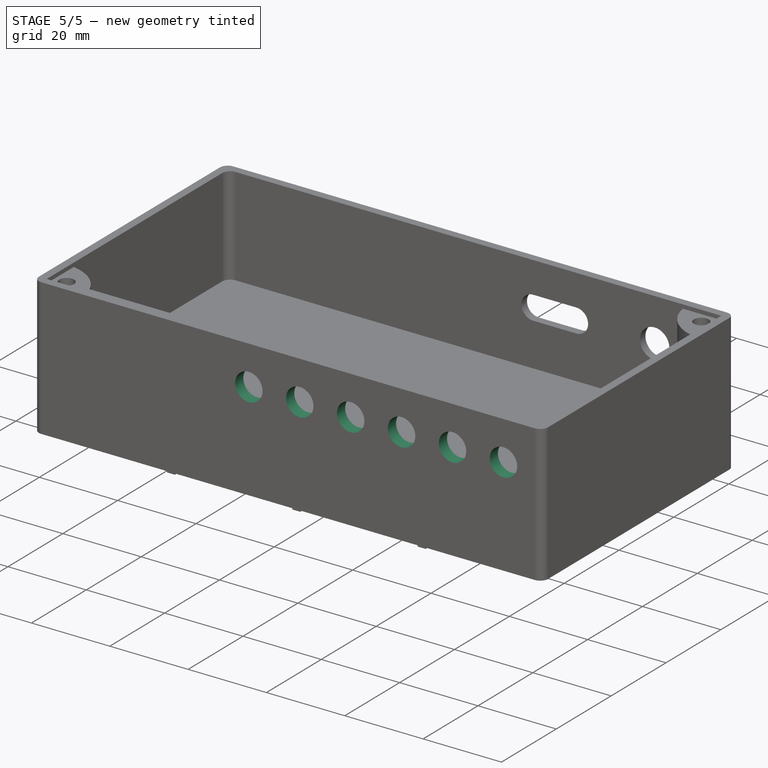
[diagram: stage 5 of 5 — iso view after this stage's code; geometry added in this stage tinted green]
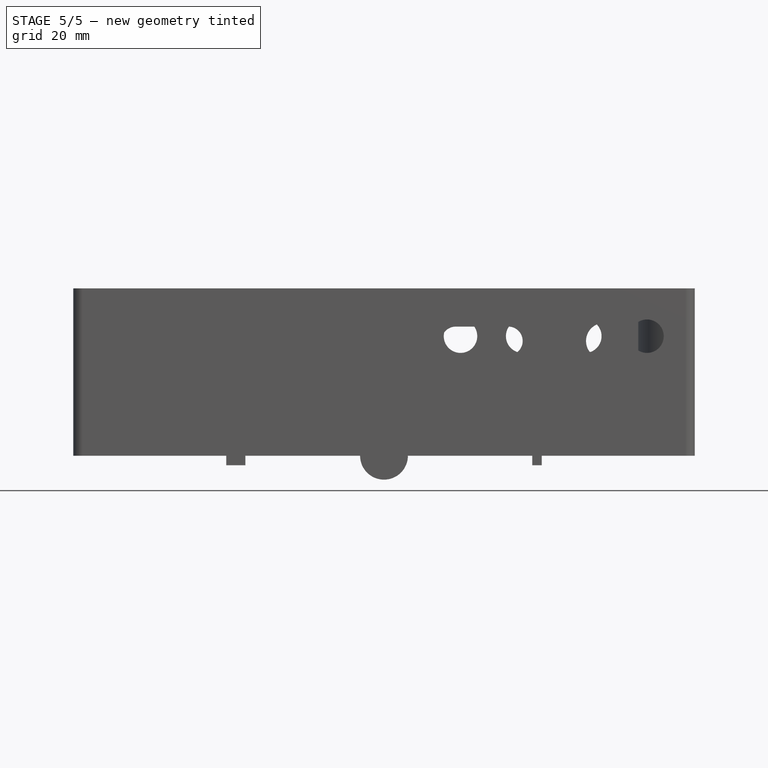
[diagram: stage 5 of 5 — front view after this stage's code; geometry added in this stage tinted green]
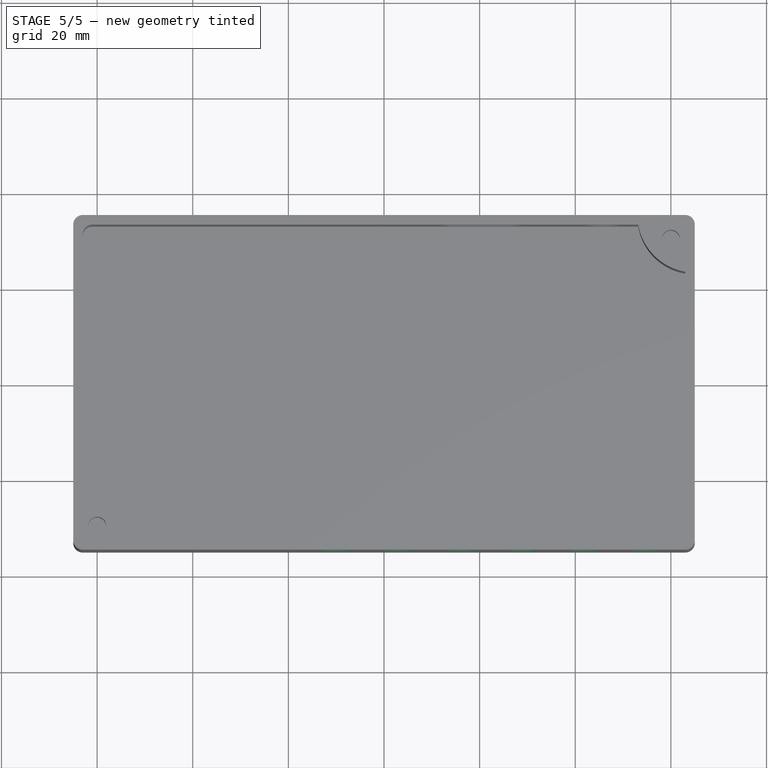
[diagram: stage 5 of 5 — top view after this stage's code; geometry added in this stage tinted green]
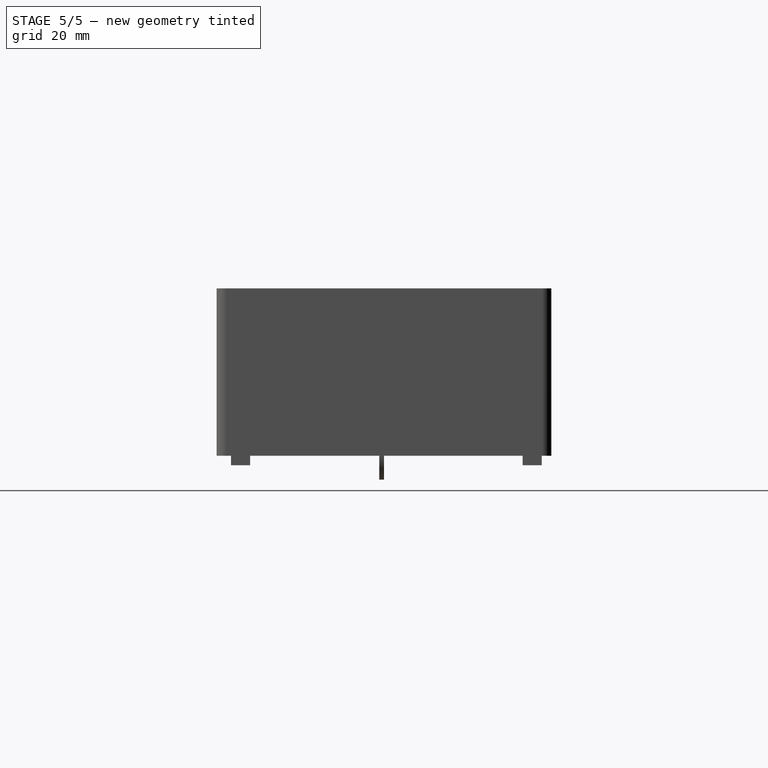
[diagram: stage 5 of 5 — right view after this stage's code; geometry added in this stage tinted green]
FEATURE [Sketcher::SketchObject] Sketch005
  ExternalGeometry = -> [Pad001]
  FullyConstrained = true
  MapMode = 5
  Placement = pos=(0,0,34) rot=(0,0,1;0rad)
  Support = -> [Pad001]
  sketch-geometry (2):
    g0: Circle CenterX=-60 CenterY=-30 CenterZ=0 NormalX=0 NormalY=0 NormalZ=1 AngleXU=0 Radius=1.9
    g1: Circle CenterX=60 CenterY=30 CenterZ=0 NormalX=0 NormalY=0 NormalZ=1 AngleXU=0 Radius=1.9
  constraints (6):
    c: Equal(g1,g0)
    c: Diameter(g1) = 3.8
    c: DistanceX(g1,g-3) = 5
    c: DistanceY(g1,g-3) = 5
    c: DistanceX(g-4,g0) = 5
    c: DistanceY(g-4,g0) = 5
FEATURE [PartDesign::Pocket] Pocket003
  BaseFeature = -> Pad001
  Direction = (0,0,-1)
  Length = 10
  Length2 = 5
  Profile = -> Sketch005
  ReferenceAxis = -> Sketch005 [N_Axis]
  Type = 0
FEATURE [Sketcher::SketchObject] Sketch006
  ExternalGeometry = -> [Pocket003]
  FullyConstrained = true
  MapMode = 5
  Placement = pos=(0,0,35) rot=(0,0,1;0rad)
  Support = -> [Pocket003]
  sketch-geometry (4):
    g0: LineSegment StartX=-63 StartY=-32 StartZ=0 EndX=-53 EndY=-32 EndZ=0
    g1: LineSegment StartX=-53 StartY=-32 StartZ=0 EndX=-53 EndY=-33 EndZ=0
    g2: LineSegment StartX=-53 StartY=-33 StartZ=0 EndX=-63 EndY=-33 EndZ=0
    g3: LineSegment StartX=-63 StartY=-33 StartZ=0 EndX=-63 EndY=-32 EndZ=0
  constraints (11):
    c: Coincident(g0,g1)
    c: Coincident(g1,g2)
    c: Coincident(g2,g3)
    c: Coincident(g3,g0)
    c: Horizontal(g0)
    c: Horizontal(g2)
    c: Vertical(g1)
    c: Vertical(g3)
    c: Coincident(g0,g-3)
    c: DistanceX(g2,g2) = 10
    c: DistanceY(g1,g1) = 1
FEATURE [PartDesign::Pocket] Pocket004
  BaseFeature = -> Pocket003
  Direction = (0,0,-1)
  Length = 1
  Length2 = 5
  Profile = -> Sketch006
  ReferenceAxis = -> Sketch006 [N_Axis]
  Type = 0
FEATURE [Sketcher::SketchObject] Sketch007
  ExternalGeometry = -> [Pocket004]
  FullyConstrained = true
  MapMode = 5
  Placement = pos=(0,35,0) rot=(0,0.707107,0.707107;3.14159rad)
  Support = -> [Pocket004]
  sketch-geometry (1):
    g0: Circle CenterX=-46 CenterY=24 CenterZ=0 NormalX=0 NormalY=0 NormalZ=1 AngleXU=0 Radius=3.75
  constraints (3):
    c: Diameter(g0) = 7.5
    c: DistanceX(g-3,g0) = 7
    c: DistanceY(g-4,g0) = 0
FEATURE [PartDesign::Pocket] Pocket005
  BaseFeature = -> Pocket004
  Direction = (0,-1,2e-16)
  Length = 2
  Length2 = 5
  Profile = -> Sketch007
  ReferenceAxis = -> Sketch007 [N_Axis]
  Type = 0
FEATURE [Sketcher::SketchObject] Sketch008
  AttachmentOffset = pos=(0,0,-87) rot=(0,0,1;0rad)
  ExternalGeometry = -> [Pocket005]
  FullyConstrained = true
  MapMode = 5
  Placement = pos=(-22,0,0) rot=(0.57735,0.57735,0.57735;2.0944rad)
  Support = -> [Pocket005]
  sketch-geometry (6):
    g0: LineSegment StartX=-35 StartY=0 StartZ=0 EndX=-35 EndY=8 EndZ=0
    g1: LineSegment StartX=35 StartY=0 StartZ=0 EndX=35 EndY=8 EndZ=0
    g2: LineSegment StartX=35 StartY=0 StartZ=0 EndX=-35 EndY=0 EndZ=0
    g3: LineSegment StartX=-30 StartY=4 StartZ=0 EndX=30 EndY=4 EndZ=0
    g4: ArcOfCircle CenterX=30.1008 CenterY=8.99898 CenterZ=0 NormalX=0 NormalY=0 NormalZ=1 AngleXU=0 Radius=5 StartAngle=4.69222 EndAngle=6.08203
    g5: ArcOfCircle CenterX=-30.1008 CenterY=8.99898 CenterZ=0 NormalX=0 NormalY=0 NormalZ=1 AngleXU=0 Radius=5 StartAngle=3.34274 EndAngle=4.73255
  constraints (17):
    c: Coincident(g0,g-3)
    c: PointOnObject(g0,g-3)
    c: Coincident(g1,g-4)
    c: PointOnObject(g1,g-4)
    c: Coincident(g2,g1)
    c: Coincident(g2,g0)
    c: Coincident(g4,g1)
    c: Coincident(g4,g3)
    c: Coincident(g5,g3)
    c: Coincident(g5,g0)
    c: DistanceY(g0,g3) = 4
    c: DistanceY(g0,g0) = 8
    c: Symmetric(g3,g3,g-2)
    c: Equal(g5,g4)
    c: DistanceX(g3,g3) = 60
    c: Diameter(g4) = 10
    c: Equal(g1,g0)
FEATURE [Sketcher::SketchObject] Sketch009
  AttachmentOffset = pos=(0,0,-43) rot=(0,0,1;0rad)
  ExternalGeometry = -> [Pocket005]
  FullyConstrained = true
  MapMode = 5
  Placement = pos=(22,0,0) rot=(0.57735,0.57735,0.57735;2.0944rad)
  Support = -> [Pocket005]
  sketch-geometry (6):
    g0: LineSegment StartX=-35 StartY=0 StartZ=0 EndX=35 EndY=0 EndZ=0
    g1: LineSegment StartX=35 StartY=0 StartZ=0 EndX=35 EndY=8 EndZ=0
    g2: LineSegment StartX=-35 StartY=0 StartZ=0 EndX=-35 EndY=8 EndZ=0
    g3: LineSegment StartX=-30 StartY=4 StartZ=0 EndX=30 EndY=4 EndZ=0
    g4: ArcOfCircle CenterX=-30.1008 CenterY=8.99898 CenterZ=0 NormalX=0 NormalY=0 NormalZ=1 AngleXU=0 Radius=5 StartAngle=3.34274 EndAngle=4.73255
    g5: ArcOfCircle CenterX=30.1008 CenterY=8.99898 CenterZ=0 NormalX=0 NormalY=0 NormalZ=1 AngleXU=0 Radius=5 StartAngle=4.69222 EndAngle=6.08203
  constraints (17):
    c: Coincident(g0,g-5)
    c: Coincident(g0,g-4)
    c: Coincident(g1,g0)
    c: PointOnObject(g1,g-4)
    c: Coincident(g2,g0)
    c: PointOnObject(g2,g-5)
    c: Equal(g2,g1)
    c: DistanceY(g2,g2) = 8
    c: DistanceY(g0,g3) = 4
    c: Symmetric(g3,g3,g-2)
    c: DistanceX(g3,g3) = 60
    c: Coincident(g4,g3)
    c: Coincident(g4,g2)
    c: Coincident(g5,g1)
    c: Coincident(g5,g3)
    c: Equal(g5,g4)
    c: Diameter(g5) = 10
FEATURE [PartDesign::Pad] Pad002
  BaseFeature = -> Pocket005
  Direction = (1,0,0)
  Length = 2
  Length2 = 10
  Midplane = true
  Profile = -> Sketch008
  ReferenceAxis = -> Sketch008 [N_Axis]
  Type = 0
FEATURE [PartDesign::Pad] Pad003
  BaseFeature = -> Pad002
  Direction = (1,0,0)
  Length = 2
  Length2 = 10
  Midplane = true
  Profile = -> Sketch009
  ReferenceAxis = -> Sketch009 [N_Axis]
  Type = 0
FEATURE [Sketcher::SketchObject] Sketch020
  ExternalGeometry = -> [Pad003]
  FullyConstrained = true
  MapMode = 5
  Placement = pos=(0,-35,0) rot=(1,0,0;1.5708rad)
  Support = -> [Pad003]
  sketch-geometry (6):
    g0: Circle CenterX=-10 CenterY=25 CenterZ=0 NormalX=0 NormalY=0 NormalZ=1 AngleXU=0 Radius=3.5
    g1: Circle CenterX=3 CenterY=25 CenterZ=0 NormalX=0 NormalY=0 NormalZ=1 AngleXU=0 Radius=3.5
    g2: Circle CenterX=16 CenterY=25 CenterZ=0 NormalX=0 NormalY=0 NormalZ=1 AngleXU=0 Radius=3.5
    g3: Circle CenterX=29 CenterY=25 CenterZ=0 NormalX=0 NormalY=0 NormalZ=1 AngleXU=0 Radius=3.5
    g4: Circle CenterX=42 CenterY=25 CenterZ=0 NormalX=0 NormalY=0 NormalZ=1 AngleXU=0 Radius=3.5
    g5: Circle CenterX=55 CenterY=25 CenterZ=0 NormalX=0 NormalY=0 NormalZ=1 AngleXU=0 Radius=3.5
  constraints (14):
    c: Equal(g0, g1-g5) x5
    c: Diameter(g0) = 7
    c: DistanceX(g0,g1) = 13
    c: DistanceX(g1,g2) = 13
    c: DistanceX(g2,g3) = 13
    c: DistanceX(g3,g4) = 13
    c: DistanceX(g4,g5) = 13
    c: DistanceY(g0,g1) = 0
    c: DistanceY(g2,g1) = 0
    c: DistanceY(g3,g2) = 0
    c: DistanceY(g4,g3) = 0
    c: DistanceY(g5,g4) = 0
    c: DistanceX(g5,g-3) = 10
    c: DistanceY(g5,g-3) = 10
FEATURE [PartDesign::Pocket] Pocket012
  BaseFeature = -> Pad003
  Direction = (0,1,-2e-16)
  Length = 3
  Length2 = 5
  Profile = -> Sketch020
  ReferenceAxis = -> Sketch020 [N_Axis]
  Type = 0
FEATURE [PartDesign::Fillet] Fillet
  Base = -> Pocket012 [Edge41,Edge136,Edge14,Edge38,Edge132,Edge99]
  BaseFeature = -> Pocket012
  Radius = 2
  SupportTransform = false
  UseAllEdges = false
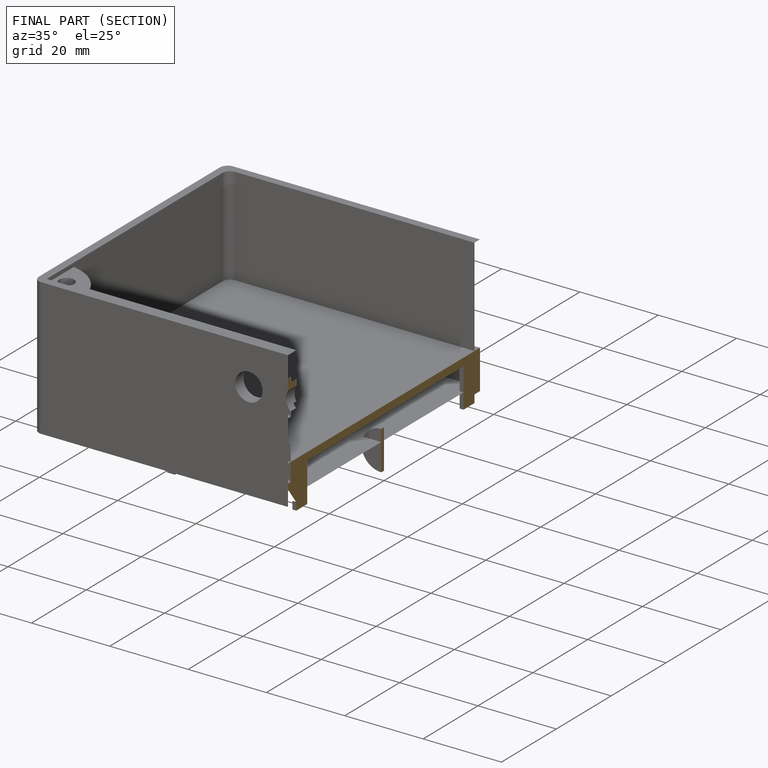
[diagram: finished part — half-section view (interior)]
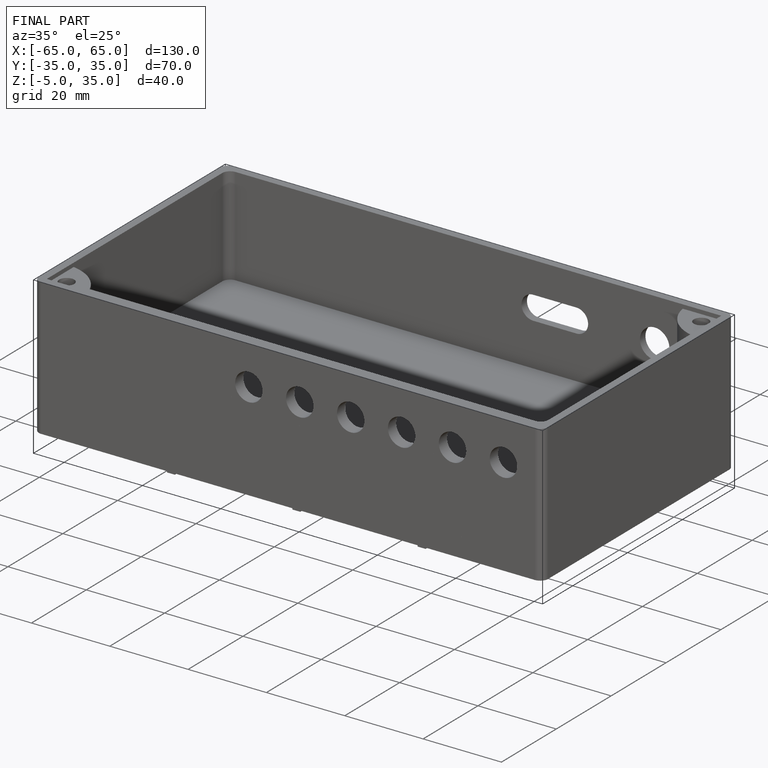
[diagram: finished part — iso view with bounding-box wireframe]
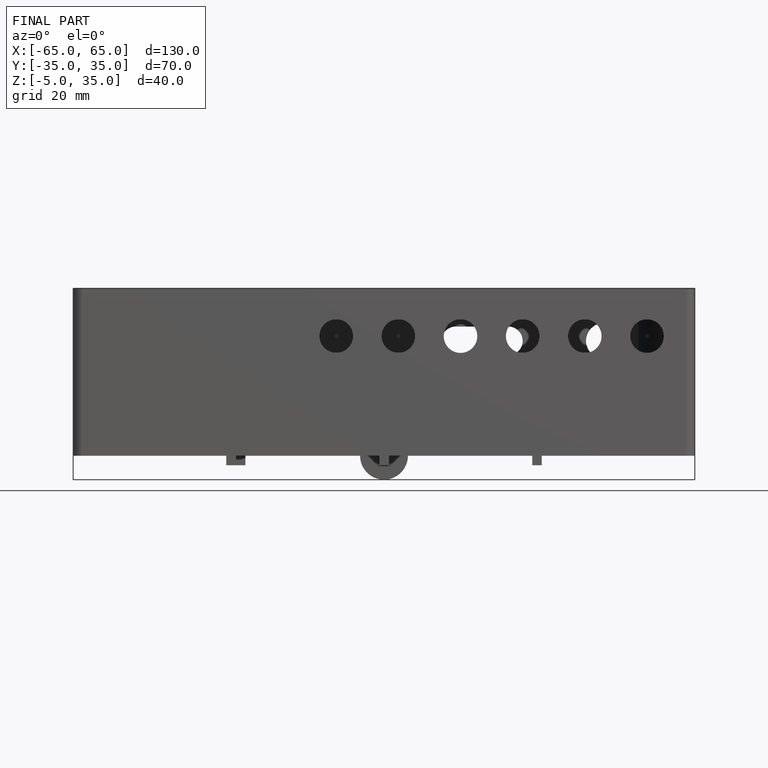
[diagram: finished part — front view with bounding-box wireframe]
